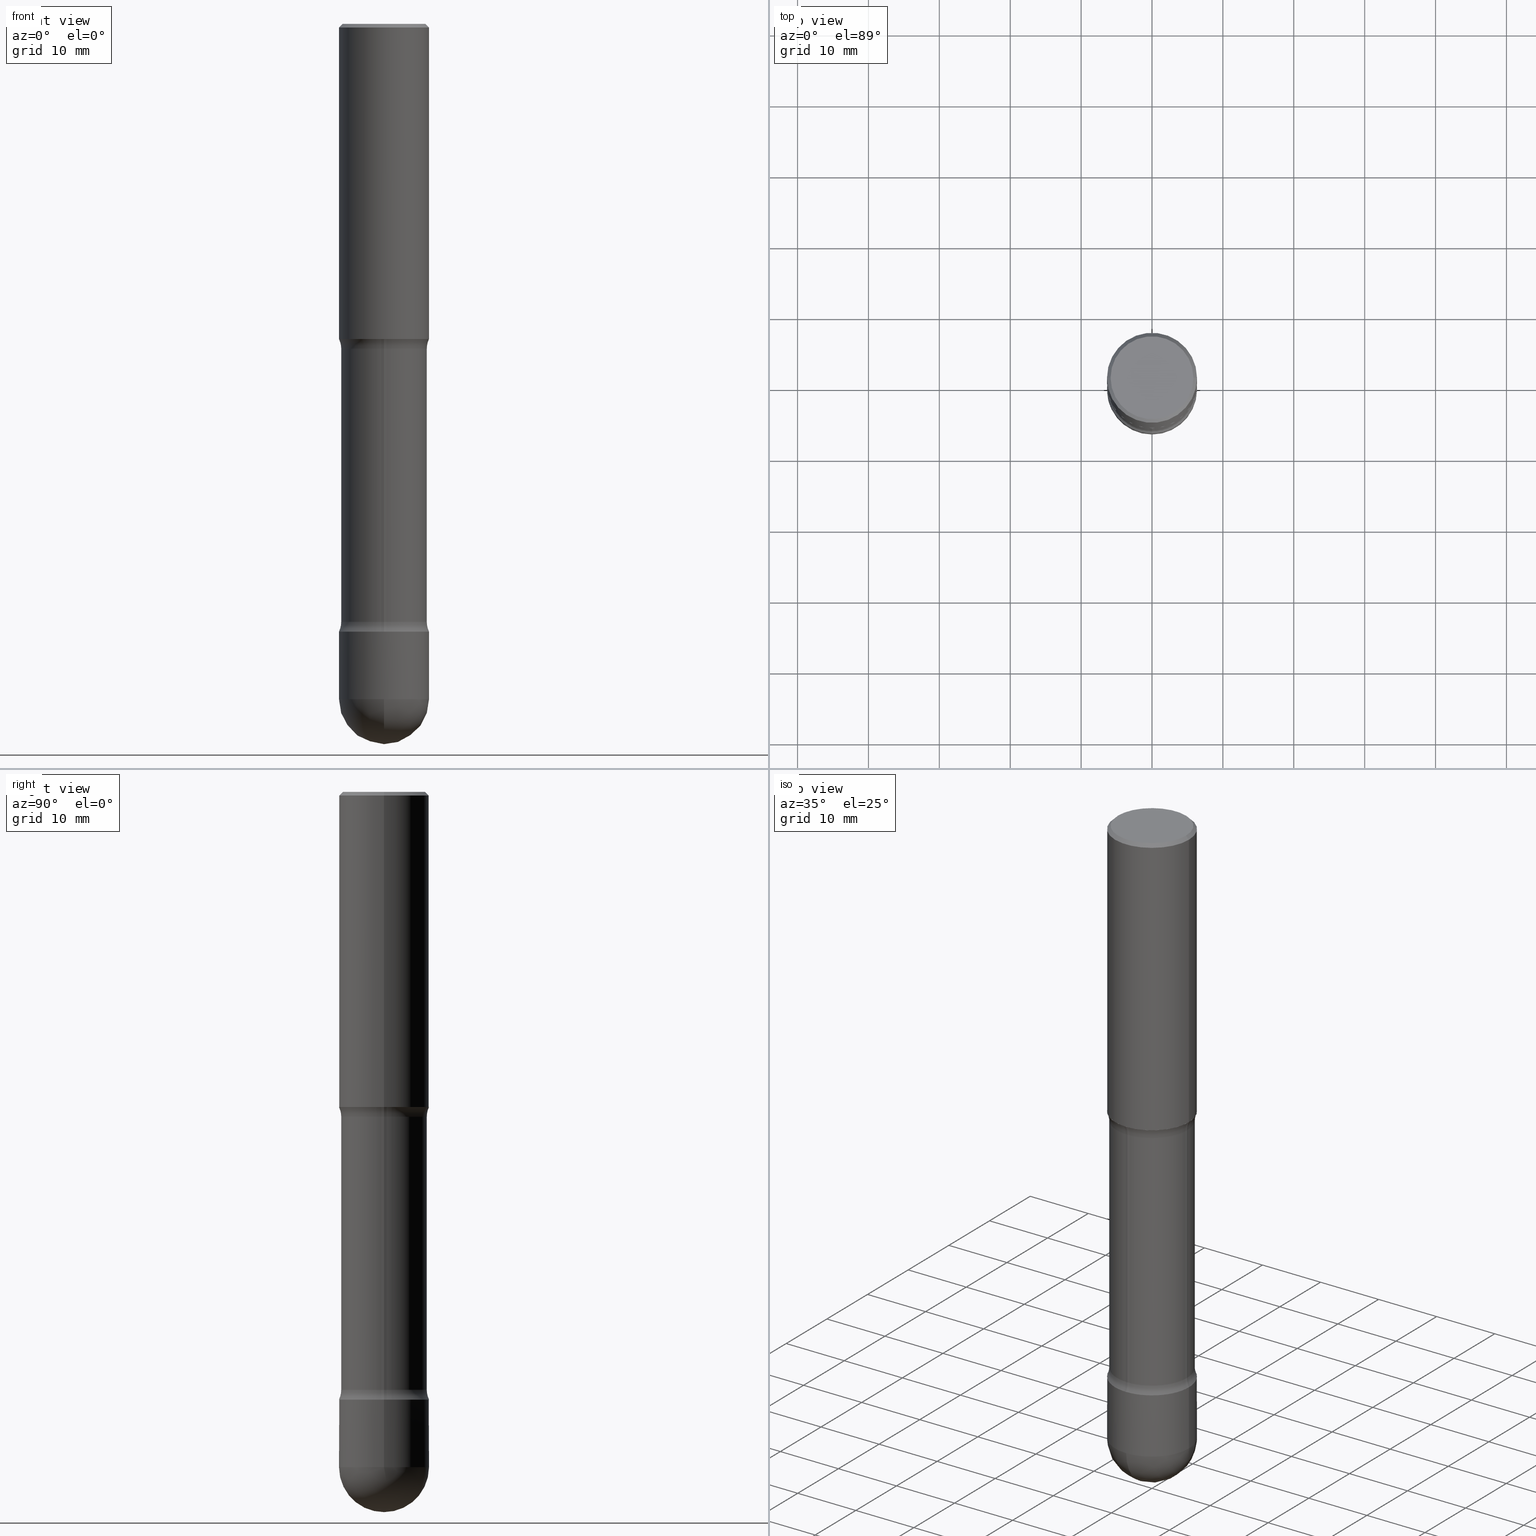
[diagram: canonical four-view strip — front | top / right | iso, engineering-drawing reading convention]
A machine part, canonical four-view strip (front | top / right | iso — engineering-drawing reading convention). The complete STEP part file that produces these views, byte-faithful:
ISO-10303-21;
HEADER;
FILE_DESCRIPTION (( 'STEP AP214' ),
    '1' );
FILE_NAME ('35010.STEP',
    '2022-11-30T20:51:58',
    ( '' ),
    ( '' ),
    'SwSTEP 2.0',
    'SolidWorks 2022',
    '' );
FILE_SCHEMA (( 'AUTOMOTIVE_DESIGN' ));
ENDSEC;

DATA;
#1 = ORIENTED_EDGE ( 'NONE', *, *, #7, .T. ) ;
#2 = DIRECTION ( 'NONE',  ( 1.000000000000000000, -6.982962677686265922E-15, 4.883557194083112901E-29 ) ) ;
#3 = VECTOR ( 'NONE', #408, 39.37007874015748143 ) ;
#4 = FILL_AREA_STYLE_COLOUR ( '', #750 ) ;
#5 = PRESENTATION_LAYER_ASSIGNMENT (  '', '', ( #367 ) ) ;
#6 = CARTESIAN_POINT ( 'NONE',  ( 1.776356839400337634E-15, 0.2499999999999863443, -3.750000000000000888 ) ) ;
#7 = EDGE_CURVE ( 'NONE', #607, #129, #505, .T. ) ;
#8 = AXIS2_PLACEMENT_3D ( 'NONE', #757, #491, #697 ) ;
#9 = DIRECTION ( 'NONE',  ( 1.848835711178280162E-29, -4.345893889139841245E-15, -1.000000000000000000 ) ) ;
#10 = CARTESIAN_POINT ( 'NONE',  ( 0.2500000000000000555, -7.855833012397072137E-15, -1.750000000000000000 ) ) ;
#11 = AXIS2_PLACEMENT_3D ( 'NONE', #770, #639, #562 ) ;
#12 = ORIENTED_EDGE ( 'NONE', *, *, #212, .F. ) ;
#13 = DIRECTION ( 'NONE',  ( 1.848835711178280162E-29, -4.345893889139841245E-15, -1.000000000000000000 ) ) ;
#14 = EDGE_LOOP ( 'NONE', ( #69, #371, #843, #444 ) ) ;
#15 = CARTESIAN_POINT ( 'NONE',  ( 9.408979540361261641E-29, -1.449993319930801510E-14, -4.000000000000000000 ) ) ;
#16 = STYLED_ITEM ( 'NONE', ( #762 ), #480 ) ;
#17 = DIRECTION ( 'NONE',  ( 1.000000000000000000, -6.982962677686267499E-15, 4.883557194083112901E-29 ) ) ;
#18 = PLANE ( 'NONE',  #139 ) ;
#19 = EDGE_LOOP ( 'NONE', ( #708, #134, #663, #402 ) ) ;
#20 = CARTESIAN_POINT ( 'NONE',  ( 0.2499999999999993061, -1.418414293905026949E-14, -3.749999999999999556 ) ) ;
#21 = EDGE_CURVE ( 'NONE', #454, #435, #279, .T. ) ;
#22 = DIRECTION ( 'NONE',  ( 1.000000000000000000, -6.982962677686265922E-15, 4.876176775795935793E-29 ) ) ;
#23 = EDGE_CURVE ( 'NONE', #646, #660, #469, .T. ) ;
#24 = CARTESIAN_POINT ( 'NONE',  ( -0.3624999999999998224, -3.724612604836086453E-15, -1.804486236794258680 ) ) ;
#25 = ADVANCED_FACE ( 'NONE', ( #78 ), #71, .T. ) ;
#26 = DIRECTION ( 'NONE',  ( 1.000000000000000000, -6.982962677686266711E-15, 4.883557194083112340E-29 ) ) ;
#27 = CLOSED_SHELL ( 'NONE', ( #706, #653, #794, #332, #473, #513, #819, #640 ) ) ;
#28 = CARTESIAN_POINT ( 'NONE',  ( -0.2499999999999996114, 1.675911042644701013E-15, -0.02000000000000005246 ) ) ;
#29 = SURFACE_STYLE_USAGE ( .BOTH. , #221 ) ;
#30 = FILL_AREA_STYLE ('',( #104 ) ) ;
#31 = SURFACE_STYLE_FILL_AREA ( #692 ) ;
#32 = PRESENTATION_LAYER_ASSIGNMENT (  '', '', ( #16 ) ) ;
#33 = CIRCLE ( 'NONE', #177, 0.2374999999999998501 ) ;
#34 = VECTOR ( 'NONE', #364, 39.37007874015748143 ) ;
#35 = UNCERTAINTY_MEASURE_WITH_UNIT (LENGTH_MEASURE( 1.000000000000000082E-05 ), #652, 'distance_accuracy_value', 'NONE');
#36 = SURFACE_SIDE_STYLE ('',( #631 ) ) ;
#37 = CARTESIAN_POINT ( 'NONE',  ( 1.606081415867838306E-15, 0.2299999999999995937, -7.966379391987714714E-16 ) ) ;
#38 =( LENGTH_UNIT ( ) NAMED_UNIT ( * ) SI_UNIT ( $, .METRE. ) );
#39 = EDGE_LOOP ( 'NONE', ( #853, #56, #732, #184, #785 ) ) ;
#40 =( NAMED_UNIT ( * ) SI_UNIT ( $, .STERADIAN. ) SOLID_ANGLE_UNIT ( ) );
#41 = EDGE_CURVE ( 'NONE', #507, #64, #33, .T. ) ;
#42 = AXIS2_PLACEMENT_3D ( 'NONE', #627, #702, #358 ) ;
#43 = CONICAL_SURFACE ( 'NONE', #643, 0.2499999999999996114, 0.7853981633974473908 ) ;
#44 = VERTEX_POINT ( 'NONE', #6 ) ;
#45 = TOROIDAL_SURFACE ( 'NONE', #523, 0.3625000000000001554, 0.1250000000000000278 ) ;
#46 = FACE_OUTER_BOUND ( 'NONE', #737, .T. ) ;
#47 = CIRCLE ( 'NONE', #73, 0.2374999999999998501 ) ;
#48 = CARTESIAN_POINT ( 'NONE',  ( -1.672246386956727041E-15, -0.2375000000000117295, -3.320513763205742208 ) ) ;
#49 = EDGE_LOOP ( 'NONE', ( #439, #1, #529, #593 ) ) ;
#50 = DIRECTION ( 'NONE',  ( 6.982962677686265922E-15, 1.000000000000000000, -4.345893889139841245E-15 ) ) ;
#51 = ORIENTED_EDGE ( 'NONE', *, *, #296, .T. ) ;
#52 = PRESENTATION_STYLE_ASSIGNMENT (( #787 ) ) ;
#53 = ORIENTED_EDGE ( 'NONE', *, *, #66, .T. ) ;
#54 = CIRCLE ( 'NONE', #312, 0.2500000000000000000 ) ;
#55 = FACE_OUTER_BOUND ( 'NONE', #636, .T. ) ;
#56 = ORIENTED_EDGE ( 'NONE', *, *, #527, .T. ) ;
#57 = SPHERICAL_SURFACE ( 'NONE', #397, 0.2500000000000002220 ) ;
#58 = EDGE_CURVE ( 'NONE', #256, #723, #517, .T. ) ;
#59 =( NAMED_UNIT ( * ) SI_UNIT ( $, .STERADIAN. ) SOLID_ANGLE_UNIT ( ) );
#60 = ORIENTED_EDGE ( 'NONE', *, *, #395, .F. ) ;
#61 = ORIENTED_EDGE ( 'NONE', *, *, #41, .T. ) ;
#62 = CIRCLE ( 'NONE', #167, 0.2299999999999995937 ) ;
#63 =( NAMED_UNIT ( * ) PLANE_ANGLE_UNIT ( ) SI_UNIT ( $, .RADIAN. ) );
#64 = VERTEX_POINT ( 'NONE', #288 ) ;
#65 = FILL_AREA_STYLE ('',( #4 ) ) ;
#66 = EDGE_CURVE ( 'NONE', #435, #454, #860, .T. ) ;
#67 = ORIENTED_EDGE ( 'NONE', *, *, #257, .F. ) ;
#68 = UNCERTAINTY_MEASURE_WITH_UNIT (LENGTH_MEASURE( 1.000000000000000082E-05 ), #657, 'distance_accuracy_value', 'NONE');
#69 = ORIENTED_EDGE ( 'NONE', *, *, #667, .F. ) ;
#70 = PRESENTATION_STYLE_ASSIGNMENT (( #372 ) ) ;
#71 = CONICAL_SURFACE ( 'NONE', #509, 0.2499999999999996114, 0.7853981633974473908 ) ;
#72 = PRESENTATION_STYLE_ASSIGNMENT (( #735 ) ) ;
#73 = AXIS2_PLACEMENT_3D ( 'NONE', #560, #163, #431 ) ;
#74 = EDGE_LOOP ( 'NONE', ( #476, #654, #793, #844 ) ) ;
#75 = TOROIDAL_SURFACE ( 'NONE', #558, 0.3624999999999998224, 0.1250000000000000000 ) ;
#76 =( CONVERSION_BASED_UNIT ( 'INCH', #209 ) LENGTH_UNIT ( ) NAMED_UNIT ( #429 ) );
#77 = DIRECTION ( 'NONE',  ( 1.000000000000000000, -6.982962677686266711E-15, 0.000000000000000000 ) ) ;
#78 = FACE_OUTER_BOUND ( 'NONE', #447, .T. ) ;
#79 = DIRECTION ( 'NONE',  ( -1.000000000000000000, 6.982962677686265922E-15, -4.883557194083112340E-29 ) ) ;
#80 = DIRECTION ( 'NONE',  ( -2.445468806185136597E-29, 3.491481338843145583E-15, 1.000000000000000000 ) ) ;
#81 = DIRECTION ( 'NONE',  ( -2.438088387897960049E-29, 3.491481338843145188E-15, 1.000000000000000000 ) ) ;
#82 = ADVANCED_FACE ( 'NONE', ( #479 ), #557, .F. ) ;
#83 = CIRCLE ( 'NONE', #229, 0.1250000000000000278 ) ;
#84 = EDGE_CURVE ( 'NONE', #464, #369, #563, .T. ) ;
#85 = DIRECTION ( 'NONE',  ( -2.445468806185136597E-29, 3.491481338843145583E-15, 1.000000000000000000 ) ) ;
#86 = CIRCLE ( 'NONE', #231, 0.2499999999999996114 ) ;
#87 = FACE_OUTER_BOUND ( 'NONE', #301, .T. ) ;
#88 = FACE_OUTER_BOUND ( 'NONE', #396, .T. ) ;
#89 = CARTESIAN_POINT ( 'NONE',  ( 0.2299999999999995937, -1.681434332853596250E-15, 1.280553747031272933E-17 ) ) ;
#90 = EDGE_LOOP ( 'NONE', ( #589, #857, #805, #61 ) ) ;
#91 = DIRECTION ( 'NONE',  ( -2.445468806185136597E-29, 3.491481338843145583E-15, 1.000000000000000000 ) ) ;
#92 = DIRECTION ( 'NONE',  ( -2.445468806185136597E-29, 3.491481338843145583E-15, 1.000000000000000000 ) ) ;
#93 = DIRECTION ( 'NONE',  ( -2.445468806185136597E-29, 3.491481338843145583E-15, 1.000000000000000000 ) ) ;
#94 = DIRECTION ( 'NONE',  ( 1.000000000000000000, -6.982962677686266711E-15, 4.876176775795935793E-29 ) ) ;
#95 = SURFACE_SIDE_STYLE ('',( #31 ) ) ;
#96 = AXIS2_PLACEMENT_3D ( 'NONE', #674, #13, #327 ) ;
#97 = STYLED_ITEM ( 'NONE', ( #581 ), #825 ) ;
#98 = DIMENSIONAL_EXPONENTS ( 1.000000000000000000, 0.000000000000000000, 0.000000000000000000, 0.000000000000000000, 0.000000000000000000, 0.000000000000000000, 0.000000000000000000 ) ;
#99 = CARTESIAN_POINT ( 'NONE',  ( 8.120212828428064270E-29, -1.159351183960467950E-14, -3.320513763205743096 ) ) ;
#100 =( NAMED_UNIT ( * ) PLANE_ANGLE_UNIT ( ) SI_UNIT ( $, .RADIAN. ) );
#101 = ORIENTED_EDGE ( 'NONE', *, *, #575, .F. ) ;
#102 = AXIS2_PLACEMENT_3D ( 'NONE', #277, #687, #549 ) ;
#103 = CARTESIAN_POINT ( 'NONE',  ( 9.408979540361261641E-29, -1.449993319930801510E-14, -4.000000000000000000 ) ) ;
#104 = FILL_AREA_STYLE_COLOUR ( '', #481 ) ;
#105 = DIMENSIONAL_EXPONENTS ( 1.000000000000000000, 0.000000000000000000, 0.000000000000000000, 0.000000000000000000, 0.000000000000000000, 0.000000000000000000, 0.000000000000000000 ) ;
#106 =( NAMED_UNIT ( * ) PLANE_ANGLE_UNIT ( ) SI_UNIT ( $, .RADIAN. ) );
#107 = ORIENTED_EDGE ( 'NONE', *, *, #795, .F. ) ;
#108 = ORIENTED_EDGE ( 'NONE', *, *, #527, .F. ) ;
#109 = SURFACE_STYLE_FILL_AREA ( #329 ) ;
#110 = ADVANCED_FACE ( 'NONE', ( #347 ), #75, .F. ) ;
#111 = AXIS2_PLACEMENT_3D ( 'NONE', #711, #829, #434 ) ;
#112 = ORIENTED_EDGE ( 'NONE', *, *, #245, .T. ) ;
#113 = CIRCLE ( 'NONE', #809, 0.1250000000000000278 ) ;
#114 = AXIS2_PLACEMENT_3D ( 'NONE', #317, #594, #251 ) ;
#115 = LINE ( 'NONE', #452, #261 ) ;
#116 = SURFACE_SIDE_STYLE ('',( #715 ) ) ;
#117 = COLOUR_RGB ( '',0.7921568627450980005, 0.8196078431372548767, 0.9333333333333333481 ) ;
#118 = VERTEX_POINT ( 'NONE', #89 ) ;
#119 = SURFACE_SIDE_STYLE ('',( #845 ) ) ;
#120 = FACE_OUTER_BOUND ( 'NONE', #516, .T. ) ;
#121 = AXIS2_PLACEMENT_3D ( 'NONE', #746, #475, #614 ) ;
#122 = ORIENTED_EDGE ( 'NONE', *, *, #613, .T. ) ;
#123 = APPLICATION_PROTOCOL_DEFINITION ( 'draft international standard', 'automotive_design', 1998, #238 ) ;
#124 = DIRECTION ( 'NONE',  ( -2.445468806185136597E-29, 3.491481338843145583E-15, 1.000000000000000000 ) ) ;
#125 = AXIS2_PLACEMENT_3D ( 'NONE', #821, #685, #605 ) ;
#126 = FILL_AREA_STYLE ('',( #719 ) ) ;
#127 = COLOUR_RGB ( '',0.7921568627450980005, 0.8196078431372548767, 0.9333333333333333481 ) ;
#128 = EDGE_LOOP ( 'NONE', ( #790, #248, #689, #314 ) ) ;
#129 = VERTEX_POINT ( 'NONE', #621 ) ;
#130 = ORIENTED_EDGE ( 'NONE', *, *, #23, .T. ) ;
#131 = DIRECTION ( 'NONE',  ( -2.445468806185136877E-29, 3.491481338843145188E-15, 1.000000000000000000 ) ) ;
#132 = ORIENTED_EDGE ( 'NONE', *, *, #575, .T. ) ;
#133 = DIRECTION ( 'NONE',  ( 1.848835711178280162E-29, -4.345893889139841245E-15, -1.000000000000000000 ) ) ;
#134 = ORIENTED_EDGE ( 'NONE', *, *, #599, .T. ) ;
#135 = AXIS2_PLACEMENT_3D ( 'NONE', #228, #707, #224 ) ;
#136 = FACE_OUTER_BOUND ( 'NONE', #74, .T. ) ;
#137 =( GEOMETRIC_REPRESENTATION_CONTEXT ( 3 ) GLOBAL_UNCERTAINTY_ASSIGNED_CONTEXT ( ( #348 ) ) GLOBAL_UNIT_ASSIGNED_CONTEXT ( ( #784, #592, #59 ) ) REPRESENTATION_CONTEXT ( 'NONE', 'WORKASPACE' ) );
#138 = DIRECTION ( 'NONE',  ( 6.982962677686265922E-15, 1.000000000000000000, -4.601007147224051243E-15 ) ) ;
#139 = AXIS2_PLACEMENT_3D ( 'NONE', #207, #681, #22 ) ;
#140 = DIRECTION ( 'NONE',  ( 1.000000000000000000, -6.982962677686266711E-15, 4.875813741439108182E-29 ) ) ;
#141 = ADVANCED_FACE ( 'NONE', ( #219 ), #18, .F. ) ;
#142 = PLANE ( 'NONE',  #730 ) ;
#143 = ADVANCED_FACE ( 'NONE', ( #543 ), #424, .T. ) ;
#144 = SURFACE_SIDE_STYLE ('',( #745 ) ) ;
#145 = DIRECTION ( 'NONE',  ( 1.000000000000000000, -6.982962677686267499E-15, 0.000000000000000000 ) ) ;
#146 = CIRCLE ( 'NONE', #722, 0.1250000000000000278 ) ;
#147 = DIRECTION ( 'NONE',  ( -6.982962677686265133E-15, -1.000000000000000000, 0.000000000000000000 ) ) ;
#148 = FACE_OUTER_BOUND ( 'NONE', #430, .T. ) ;
#149 = VECTOR ( 'NONE', #131, 39.37007874015748143 ) ;
#150 = DIRECTION ( 'NONE',  ( -1.000000000000000000, 6.982962677686265922E-15, -4.876176775795935793E-29 ) ) ;
#151 = AXIS2_PLACEMENT_3D ( 'NONE', #174, #526, #192 ) ;
#152 = DIRECTION ( 'NONE',  ( -2.445468806185136597E-29, 3.491481338843145583E-15, 1.000000000000000000 ) ) ;
#153 = DIRECTION ( 'NONE',  ( -2.445468806185136597E-29, 3.491481338843145583E-15, 1.000000000000000000 ) ) ;
#154 = EDGE_CURVE ( 'NONE', #44, #834, #433, .T. ) ;
#155 = DIRECTION ( 'NONE',  ( 1.848835711178280162E-29, -4.345893889139841245E-15, -1.000000000000000000 ) ) ;
#156 = CARTESIAN_POINT ( 'NONE',  ( -1.715124499442795327E-15, -0.2500000000000111022, -3.374999999999998668 ) ) ;
#157 = CARTESIAN_POINT ( 'NONE',  ( 5.349835290563072716E-29, -4.958463352269768875E-15, -1.804486236794258458 ) ) ;
#158 =( NAMED_UNIT ( * ) SI_UNIT ( $, .STERADIAN. ) SOLID_ANGLE_UNIT ( ) );
#159 = DIMENSIONAL_EXPONENTS ( 1.000000000000000000, 0.000000000000000000, 0.000000000000000000, 0.000000000000000000, 0.000000000000000000, 0.000000000000000000, 0.000000000000000000 ) ;
#160 =( LENGTH_UNIT ( ) NAMED_UNIT ( * ) SI_UNIT ( $, .METRE. ) );
#161 = TOROIDAL_SURFACE ( 'NONE', #381, 0.3624999999999985456, 0.1250000000000000000 ) ;
#162 = ORIENTED_EDGE ( 'NONE', *, *, #705, .T. ) ;
#163 = DIRECTION ( 'NONE',  ( -2.445468806185136597E-29, 3.491481338843145583E-15, 1.000000000000000000 ) ) ;
#164 = DIRECTION ( 'NONE',  ( 1.000000000000000000, -6.982962677686265133E-15, 0.000000000000000000 ) ) ;
#165 = DIMENSIONAL_EXPONENTS ( 1.000000000000000000, 0.000000000000000000, 0.000000000000000000, 0.000000000000000000, 0.000000000000000000, 0.000000000000000000, 0.000000000000000000 ) ;
#166 = ORIENTED_EDGE ( 'NONE', *, *, #340, .T. ) ;
#167 = AXIS2_PLACEMENT_3D ( 'NONE', #344, #80, #140 ) ;
#168 = PRODUCT_RELATED_PRODUCT_CATEGORY ( 'part', '', ( #442 ) ) ;
#169 = EDGE_CURVE ( 'NONE', #546, #118, #62, .T. ) ;
#170 = PLANE ( 'NONE',  #271 ) ;
#171 = PRESENTATION_LAYER_ASSIGNMENT (  '', '', ( #620 ) ) ;
#172 = AXIS2_PLACEMENT_3D ( 'NONE', #320, #524, #197 ) ;
#173 = VERTEX_POINT ( 'NONE', #624 ) ;
#174 = CARTESIAN_POINT ( 'NONE',  ( 8.253457220874836014E-29, -1.178374951859561452E-14, -3.375000000000000000 ) ) ;
#175 = DIRECTION ( 'NONE',  ( -2.445468806185136597E-29, 3.491481338843145583E-15, 1.000000000000000000 ) ) ;
#176 = VECTOR ( 'NONE', #478, 39.37007874015748143 ) ;
#177 = AXIS2_PLACEMENT_3D ( 'NONE', #668, #124, #602 ) ;
#178 = EDGE_LOOP ( 'NONE', ( #266, #323, #181, #67 ) ) ;
#179 =( NAMED_UNIT ( * ) SI_UNIT ( $, .STERADIAN. ) SOLID_ANGLE_UNIT ( ) );
#180 = PRODUCT_DEFINITION_FORMATION_WITH_SPECIFIED_SOURCE ( 'ANY', '', #442, .NOT_KNOWN. ) ;
#181 = ORIENTED_EDGE ( 'NONE', *, *, #767, .T. ) ;
#182 = SURFACE_STYLE_FILL_AREA ( #65 ) ;
#183 = DIRECTION ( 'NONE',  ( 0.000000000000000000, 0.000000000000000000, 1.000000000000000000 ) ) ;
#184 = ORIENTED_EDGE ( 'NONE', *, *, #515, .F. ) ;
#185 =( CONVERSION_BASED_UNIT ( 'INCH', #521 ) LENGTH_UNIT ( ) NAMED_UNIT ( #98 ) );
#186 = VERTEX_POINT ( 'NONE', #156 ) ;
#187 = CIRCLE ( 'NONE', #682, 0.2499999999999993894 ) ;
#188 = EDGE_CURVE ( 'NONE', #325, #208, #704, .T. ) ;
#189 = AXIS2_PLACEMENT_3D ( 'NONE', #24, #267, #684 ) ;
#190 = ORIENTED_EDGE ( 'NONE', *, *, #169, .F. ) ;
#191 = DIRECTION ( 'NONE',  ( 6.982962677686265922E-15, 1.000000000000000000, -4.601007147224018900E-15 ) ) ;
#192 = DIRECTION ( 'NONE',  ( 6.982962677686265922E-15, 1.000000000000000000, -4.370956789862832194E-15 ) ) ;
#193 = EDGE_CURVE ( 'NONE', #546, #464, #553, .T. ) ;
#194 = ORIENTED_EDGE ( 'NONE', *, *, #193, .T. ) ;
#195 = FILL_AREA_STYLE_COLOUR ( '', #337 ) ;
#196 = CARTESIAN_POINT ( 'NONE',  ( 0.2499999999999996114, -1.784954126219743428E-15, -0.02000000000000005246 ) ) ;
#197 = DIRECTION ( 'NONE',  ( 1.000000000000000000, -6.982962677686262766E-15, 0.000000000000000000 ) ) ;
#198 = STYLED_ITEM ( 'NONE', ( #701 ), #493 ) ;
#199 = MECHANICAL_DESIGN_GEOMETRIC_PRESENTATION_REPRESENTATION (  '', ( #615 ), #468 ) ;
#200 = DIRECTION ( 'NONE',  ( 1.000000000000000000, -6.982962677686265133E-15, 0.000000000000000000 ) ) ;
#201 = FACE_OUTER_BOUND ( 'NONE', #14, .T. ) ;
#202 = CIRCLE ( 'NONE', #114, 0.2500000000000000000 ) ;
#203 = CARTESIAN_POINT ( 'NONE',  ( 8.668097828301368932E-29, -1.381253501516086483E-14, -3.749999999999999556 ) ) ;
#204 = EDGE_CURVE ( 'NONE', #675, #44, #387, .T. ) ;
#205 = DIRECTION ( 'NONE',  ( -6.982962677686266711E-15, -1.000000000000000000, 3.491481338843145583E-15 ) ) ;
#206 = DIRECTION ( 'NONE',  ( -2.445468806185136597E-29, 3.491481338843145583E-15, 1.000000000000000000 ) ) ;
#207 = CARTESIAN_POINT ( 'NONE',  ( 4.279570410823988484E-29, -6.110092342975504671E-15, -1.750000000000000000 ) ) ;
#208 = VERTEX_POINT ( 'NONE', #487 ) ;
#209 = LENGTH_MEASURE_WITH_UNIT ( LENGTH_MEASURE( 0.02539999999999999897 ), #547 );
#210 = CARTESIAN_POINT ( 'NONE',  ( 0.2375000000000000167, -7.768545978925992226E-15, -1.750000000000000000 ) ) ;
#211 = DIRECTION ( 'NONE',  ( 1.000000000000000000, -6.982962677686267499E-15, 0.000000000000000000 ) ) ;
#212 = EDGE_CURVE ( 'NONE', #841, #186, #756, .T. ) ;
#213 = CARTESIAN_POINT ( 'NONE',  ( 8.253457220874836014E-29, -1.178374951859561452E-14, -3.375000000000000000 ) ) ;
#214 = CIRCLE ( 'NONE', #587, 0.2500000000000000000 ) ;
#215 = AXIS2_PLACEMENT_3D ( 'NONE', #740, #392, #138 ) ;
#216 = CARTESIAN_POINT ( 'NONE',  ( 4.279570410823988484E-29, -6.110092342975504671E-15, -1.750000000000000000 ) ) ;
#217 = MECHANICAL_DESIGN_GEOMETRIC_PRESENTATION_REPRESENTATION (  '', ( #97 ), #683 ) ;
#218 = DIRECTION ( 'NONE',  ( 1.000000000000000000, -6.982962677686267499E-15, 0.000000000000000000 ) ) ;
#219 = FACE_OUTER_BOUND ( 'NONE', #500, .T. ) ;
#220 = UNCERTAINTY_MEASURE_WITH_UNIT (LENGTH_MEASURE( 1.000000000000000082E-05 ), #244, 'distance_accuracy_value', 'NONE');
#221 = SURFACE_SIDE_STYLE ('',( #109 ) ) ;
#222 = CLOSED_SHELL ( 'NONE', ( #143, #400, #25, #82, #141, #386 ) ) ;
#223 = CARTESIAN_POINT ( 'NONE',  ( 4.279570410823988484E-29, -6.110092342975504671E-15, -1.750000000000000000 ) ) ;
#224 = DIRECTION ( 'NONE',  ( 6.982962677686265922E-15, 1.000000000000000000, -4.370956789862844815E-15 ) ) ;
#225 = ORIENTED_EDGE ( 'NONE', *, *, #268, .T. ) ;
#226 = CARTESIAN_POINT ( 'NONE',  ( 8.668097828301368932E-29, -1.381253501516086483E-14, -3.749999999999999556 ) ) ;
#227 = CIRCLE ( 'NONE', #585, 0.2499999999999986400 ) ;
#228 = CARTESIAN_POINT ( 'NONE',  ( 5.249099190210130506E-29, -4.721671948743372690E-15, -1.749999999999999556 ) ) ;
#229 = AXIS2_PLACEMENT_3D ( 'NONE', #812, #79, #147 ) ;
#230 = ORIENTED_EDGE ( 'NONE', *, *, #501, .F. ) ;
#231 = AXIS2_PLACEMENT_3D ( 'NONE', #298, #492, #570 ) ;
#232 = EDGE_CURVE ( 'NONE', #646, #454, #679, .T. ) ;
#233 = DIMENSIONAL_EXPONENTS ( 1.000000000000000000, 0.000000000000000000, 0.000000000000000000, 0.000000000000000000, 0.000000000000000000, 0.000000000000000000, 0.000000000000000000 ) ;
#234 = DIRECTION ( 'NONE',  ( 6.982962677686265922E-15, 1.000000000000000000, -4.601007147224051243E-15 ) ) ;
#235 = VECTOR ( 'NONE', #155, 39.37007874015748143 ) ;
#236 = DIMENSIONAL_EXPONENTS ( 1.000000000000000000, 0.000000000000000000, 0.000000000000000000, 0.000000000000000000, 0.000000000000000000, 0.000000000000000000, 0.000000000000000000 ) ;
#237 = CARTESIAN_POINT ( 'NONE',  ( 0.2499999999999993894, -1.352949018801717646E-14, -3.375000000000000000 ) ) ;
#238 = APPLICATION_CONTEXT ( 'automotive_design' ) ;
#239 = ORIENTED_EDGE ( 'NONE', *, *, #188, .T. ) ;
#240 = CARTESIAN_POINT ( 'NONE',  ( 5.318943450862072870E-29, -5.002702224975921808E-15, -1.804486236794258458 ) ) ;
#241 = DIRECTION ( 'NONE',  ( 1.848835711178280162E-29, -4.345893889139841245E-15, -1.000000000000000000 ) ) ;
#242 = EDGE_LOOP ( 'NONE', ( #331, #166, #664, #815 ) ) ;
#243 = MANIFOLD_SOLID_BREP ( 'Body-Move/Copy2[4]', #27 ) ;
#244 =( CONVERSION_BASED_UNIT ( 'INCH', #590 ) LENGTH_UNIT ( ) NAMED_UNIT ( #362 ) );
#245 = EDGE_CURVE ( 'NONE', #660, #173, #410, .T. ) ;
#246 = CARTESIAN_POINT ( 'NONE',  ( 0.2499999999999993616, -1.745740669421562142E-15, 1.219044193948980865E-29 ) ) ;
#247 = CIRCLE ( 'NONE', #601, 0.2499999999999993061 ) ;
#248 = ORIENTED_EDGE ( 'NONE', *, *, #686, .T. ) ;
#249 = TOROIDAL_SURFACE ( 'NONE', #617, 0.3625000000000001554, 0.1250000000000000278 ) ;
#250 = ORIENTED_EDGE ( 'NONE', *, *, #84, .T. ) ;
#251 = DIRECTION ( 'NONE',  ( 1.000000000000000000, -6.982962677686266711E-15, 0.000000000000000000 ) ) ;
#252 =( LENGTH_UNIT ( ) NAMED_UNIT ( * ) SI_UNIT ( $, .METRE. ) );
#253 = VERTEX_POINT ( 'NONE', #237 ) ;
#254 =( CONVERSION_BASED_UNIT ( 'INCH', #713 ) LENGTH_UNIT ( ) NAMED_UNIT ( #566 ) );
#255 = PLANE ( 'NONE',  #796 ) ;
#256 = VERTEX_POINT ( 'NONE', #300 ) ;
#257 = EDGE_CURVE ( 'NONE', #129, #253, #146, .T. ) ;
#258 = CIRCLE ( 'NONE', #125, 0.2500000000000000000 ) ;
#259 = CARTESIAN_POINT ( 'NONE',  ( 8.668097828301368932E-29, -1.381253501516086483E-14, -3.749999999999999556 ) ) ;
#260 =( LENGTH_UNIT ( ) NAMED_UNIT ( * ) SI_UNIT ( $, .METRE. ) );
#261 = VECTOR ( 'NONE', #655, 39.37007874015748143 ) ;
#262 = CARTESIAN_POINT ( 'NONE',  ( 8.253457220874836014E-29, -1.178374951859561452E-14, -3.375000000000000000 ) ) ;
#263 = UNCERTAINTY_MEASURE_WITH_UNIT (LENGTH_MEASURE( 1.000000000000000082E-05 ), #185, 'distance_accuracy_value', 'NONE');
#264 = CYLINDRICAL_SURFACE ( 'NONE', #398, 0.2499999999999993616 ) ;
#265 = CARTESIAN_POINT ( 'NONE',  ( 4.279570410823988484E-29, -6.110092342975504671E-15, -1.750000000000000000 ) ) ;
#266 = ORIENTED_EDGE ( 'NONE', *, *, #7, .F. ) ;
#267 = DIRECTION ( 'NONE',  ( 7.105427357601001859E-15, 1.000000000000000000, -3.491481338843145583E-15 ) ) ;
#268 = EDGE_CURVE ( 'NONE', #129, #607, #789, .T. ) ;
#269 = DIRECTION ( 'NONE',  ( 1.000000000000000000, -6.982962677686266711E-15, 4.875813741439108182E-29 ) ) ;
#270 = ORIENTED_EDGE ( 'NONE', *, *, #193, .F. ) ;
#271 = AXIS2_PLACEMENT_3D ( 'NONE', #223, #579, #759 ) ;
#272 = CIRCLE ( 'NONE', #379, 0.1250000000000000278 ) ;
#273 = CARTESIAN_POINT ( 'NONE',  ( 1.658453635950531139E-15, 0.2374999999999935774, -1.804486236794259568 ) ) ;
#274 = AXIS2_PLACEMENT_3D ( 'NONE', #360, #152, #637 ) ;
#275 = CARTESIAN_POINT ( 'NONE',  ( 4.412814803270765833E-29, -6.300330021966448365E-15, -1.804486236794258680 ) ) ;
#276 = DIRECTION ( 'NONE',  ( 1.848835711178280162E-29, -4.345893889139841245E-15, -1.000000000000000000 ) ) ;
#277 = CARTESIAN_POINT ( 'NONE',  ( 0.000000000000000000, 0.000000000000000000, 0.000000000000000000 ) ) ;
#278 = EDGE_CURVE ( 'NONE', #723, #256, #490, .T. ) ;
#279 = CIRCLE ( 'NONE', #849, 0.2375000000000001554 ) ;
#280 = FACE_OUTER_BOUND ( 'NONE', #800, .T. ) ;
#281 = CARTESIAN_POINT ( 'NONE',  ( 0.000000000000000000, 0.000000000000000000, 0.000000000000000000 ) ) ;
#282 = DIRECTION ( 'NONE',  ( -1.000000000000000000, 6.982962677686265922E-15, -4.883557194083112340E-29 ) ) ;
#283 = PRODUCT_DEFINITION_CONTEXT ( 'detailed design', #839, 'design' ) ;
#284 = CARTESIAN_POINT ( 'NONE',  ( 4.279570410823988484E-29, -6.110092342975504671E-15, -1.750000000000000000 ) ) ;
#285 = AXIS2_PLACEMENT_3D ( 'NONE', #365, #175, #94 ) ;
#286 =( CONVERSION_BASED_UNIT ( 'INCH', #768 ) LENGTH_UNIT ( ) NAMED_UNIT ( #105 ) );
#287 = MECHANICAL_DESIGN_GEOMETRIC_PRESENTATION_REPRESENTATION (  '', ( #368 ), #486 ) ;
#288 = CARTESIAN_POINT ( 'NONE',  ( -0.2374999999999998501, -4.473263264055732552E-15, -1.804486236794258680 ) ) ;
#289 = AXIS2_PLACEMENT_3D ( 'NONE', #774, #438, #164 ) ;
#290 = FACE_OUTER_BOUND ( 'NONE', #49, .T. ) ;
#291 = DIRECTION ( 'NONE',  ( -1.000000000000000000, 6.982962677686265922E-15, -4.876176775795935793E-29 ) ) ;
#292 = ORIENTED_EDGE ( 'NONE', *, *, #578, .F. ) ;
#293 = SURFACE_STYLE_FILL_AREA ( #489 ) ;
#294 = EDGE_CURVE ( 'NONE', #834, #208, #775, .T. ) ;
#295 = CARTESIAN_POINT ( 'NONE',  ( 0.3625000000000002109, -1.412483581026595276E-14, -3.320513763205743096 ) ) ;
#296 = EDGE_CURVE ( 'NONE', #173, #389, #628, .T. ) ;
#297 = EDGE_LOOP ( 'NONE', ( #519, #591 ) ) ;
#298 = CARTESIAN_POINT ( 'NONE',  ( 4.890937612370285420E-31, -6.982962677686308865E-17, -0.02000000000000005246 ) ) ;
#299 = DIRECTION ( 'NONE',  ( 6.982962677686265922E-15, 1.000000000000000000, -4.370956789862844815E-15 ) ) ;
#300 = CARTESIAN_POINT ( 'NONE',  ( 0.2499999999999993894, -1.352949018801717646E-14, -3.375000000000000000 ) ) ;
#301 = EDGE_LOOP ( 'NONE', ( #847, #580 ) ) ;
#302 = CARTESIAN_POINT ( 'NONE',  ( -0.2499999999999994171, -1.066204543022846181E-14, -3.375000000000000000 ) ) ;
#303 = CARTESIAN_POINT ( 'NONE',  ( -0.2499999999999996114, 1.675911042644701013E-15, -0.02000000000000005246 ) ) ;
#304 = ORIENTED_EDGE ( 'NONE', *, *, #21, .F. ) ;
#305 = EDGE_CURVE ( 'NONE', #660, #435, #495, .T. ) ;
#306 = PRODUCT_DEFINITION_SHAPE ( 'NONE', 'NONE',  #436 ) ;
#307 = DIRECTION ( 'NONE',  ( -1.848835711178279881E-29, 4.345893889139841245E-15, 1.000000000000000000 ) ) ;
#308 = ORIENTED_EDGE ( 'NONE', *, *, #305, .T. ) ;
#309 = CARTESIAN_POINT ( 'NONE',  ( 1.745740669421644380E-15, 0.2499999999999875655, -3.375000000000000888 ) ) ;
#310 = LENGTH_MEASURE_WITH_UNIT ( LENGTH_MEASURE( 0.02539999999999999897 ), #260 );
#311 =( LENGTH_UNIT ( ) NAMED_UNIT ( * ) SI_UNIT ( $, .METRE. ) );
#312 = AXIS2_PLACEMENT_3D ( 'NONE', #216, #474, #485 ) ;
#313 = PRESENTATION_LAYER_ASSIGNMENT (  '', '', ( #571 ) ) ;
#314 = ORIENTED_EDGE ( 'NONE', *, *, #355, .F. ) ;
#315 = AXIS2_PLACEMENT_3D ( 'NONE', #103, #422, #629 ) ;
#316 = EDGE_LOOP ( 'NONE', ( #771, #718, #496, #736 ) ) ;
#317 = CARTESIAN_POINT ( 'NONE',  ( 4.279570410823988484E-29, -6.110092342975504671E-15, -1.750000000000000000 ) ) ;
#318 = CARTESIAN_POINT ( 'NONE',  ( -0.2499999999999993616, 1.776356839400245929E-15, -1.229733772563723222E-29 ) ) ;
#319 = ADVANCED_FACE ( 'NONE', ( #201 ), #366, .F. ) ;
#320 = CARTESIAN_POINT ( 'NONE',  ( 8.120212828428064270E-29, -1.159351183960467950E-14, -3.320513763205743096 ) ) ;
#321 = EDGE_CURVE ( 'NONE', #374, #649, #258, .T. ) ;
#322 = DIRECTION ( 'NONE',  ( 1.000000000000000000, -6.982962677686265922E-15, 4.883557194083112901E-29 ) ) ;
#323 = ORIENTED_EDGE ( 'NONE', *, *, #667, .T. ) ;
#324 = COLOUR_RGB ( '',1.000000000000000000, 1.000000000000000000, 0.000000000000000000 ) ;
#325 = VERTEX_POINT ( 'NONE', #415 ) ;
#326 = CARTESIAN_POINT ( 'NONE',  ( -2.486930524192099412E-15, -0.3625000000000117018, -3.320513763205741764 ) ) ;
#327 = DIRECTION ( 'NONE',  ( 6.982962677686265922E-15, 1.000000000000000000, -4.345893889139841245E-15 ) ) ;
#328 = ORIENTED_EDGE ( 'NONE', *, *, #66, .F. ) ;
#329 = FILL_AREA_STYLE ('',( #195 ) ) ;
#330 = DIRECTION ( 'NONE',  ( 2.445468806185136597E-29, -3.491481338843145583E-15, -1.000000000000000000 ) ) ;
#331 = ORIENTED_EDGE ( 'NONE', *, *, #395, .T. ) ;
#332 = ADVANCED_FACE ( 'NONE', ( #88 ), #441, .F. ) ;
#333 = LINE ( 'NONE', #472, #539 ) ;
#334 = CARTESIAN_POINT ( 'NONE',  ( 1.658453635950577879E-15, 0.2374999999999848344, -4.000000000000000888 ) ) ;
#335 =( GEOMETRIC_REPRESENTATION_CONTEXT ( 3 ) GLOBAL_UNCERTAINTY_ASSIGNED_CONTEXT ( ( #801 ) ) GLOBAL_UNIT_ASSIGNED_CONTEXT ( ( #286, #100, #158 ) ) REPRESENTATION_CONTEXT ( 'NONE', 'WORKASPACE' ) );
#336 = EDGE_LOOP ( 'NONE', ( #457, #239, #388, #418 ) ) ;
#337 = COLOUR_RGB ( '',1.000000000000000000, 1.000000000000000000, 0.000000000000000000 ) ;
#338 = DIRECTION ( 'NONE',  ( 6.982962677686265922E-15, 1.000000000000000000, -4.345893889139841245E-15 ) ) ;
#339 =( LENGTH_UNIT ( ) NAMED_UNIT ( * ) SI_UNIT ( $, .METRE. ) );
#340 = EDGE_CURVE ( 'NONE', #511, #464, #343, .T. ) ;
#341 = CARTESIAN_POINT ( 'NONE',  ( 4.890937612370285420E-31, -6.982962677686308865E-17, -0.02000000000000005246 ) ) ;
#342 = DIRECTION ( 'NONE',  ( 7.105427357601001859E-15, 1.000000000000000000, -3.491481338843145583E-15 ) ) ;
#343 = LINE ( 'NONE', #542, #176 ) ;
#344 = CARTESIAN_POINT ( 'NONE',  ( -3.131554243005659264E-46, 4.471029511141341874E-32, 1.280553747030123384E-17 ) ) ;
#345 = FACE_OUTER_BOUND ( 'NONE', #178, .T. ) ;
#346 = CARTESIAN_POINT ( 'NONE',  ( 8.253457220874836014E-29, -1.178374951859561452E-14, -3.375000000000000000 ) ) ;
#347 = FACE_OUTER_BOUND ( 'NONE', #90, .T. ) ;
#348 = UNCERTAINTY_MEASURE_WITH_UNIT (LENGTH_MEASURE( 1.000000000000000082E-05 ), #784, 'distance_accuracy_value', 'NONE');
#349 = FACE_OUTER_BOUND ( 'NONE', #606, .T. ) ;
#350 = AXIS2_PLACEMENT_3D ( 'NONE', #755, #804, #269 ) ;
#351 = DIRECTION ( 'NONE',  ( 6.860497997771529985E-15, 1.000000000000000000, 0.000000000000000000 ) ) ;
#352 = CIRCLE ( 'NONE', #458, 0.2500000000000002220 ) ;
#353 = SURFACE_STYLE_USAGE ( .BOTH. , #95 ) ;
#354 = DIRECTION ( 'NONE',  ( -2.445468806185136597E-29, 3.491481338843145583E-15, 1.000000000000000000 ) ) ;
#355 = EDGE_CURVE ( 'NONE', #208, #675, #247, .T. ) ;
#356 =( CONVERSION_BASED_UNIT ( 'INCH', #645 ) LENGTH_UNIT ( ) NAMED_UNIT ( #357 ) );
#357 = DIMENSIONAL_EXPONENTS ( 1.000000000000000000, 0.000000000000000000, 0.000000000000000000, 0.000000000000000000, 0.000000000000000000, 0.000000000000000000, 0.000000000000000000 ) ;
#358 = DIRECTION ( 'NONE',  ( -6.982962677686266711E-15, -1.000000000000000000, 0.000000000000000000 ) ) ;
#359 = ORIENTED_EDGE ( 'NONE', *, *, #463, .F. ) ;
#360 = CARTESIAN_POINT ( 'NONE',  ( 4.279570410823988484E-29, -6.110092342975504671E-15, -1.750000000000000000 ) ) ;
#361 = CARTESIAN_POINT ( 'NONE',  ( 5.249099190210130506E-29, -4.721671948743372690E-15, -1.749999999999999556 ) ) ;
#362 = DIMENSIONAL_EXPONENTS ( 1.000000000000000000, 0.000000000000000000, 0.000000000000000000, 0.000000000000000000, 0.000000000000000000, 0.000000000000000000, 0.000000000000000000 ) ;
#363 = ORIENTED_EDGE ( 'NONE', *, *, #477, .F. ) ;
#364 = DIRECTION ( 'NONE',  ( 0.7071067811865469066, -7.319954787623254468E-15, -0.7071067811865482389 ) ) ;
#365 = CARTESIAN_POINT ( 'NONE',  ( 0.000000000000000000, 0.000000000000000000, 0.000000000000000000 ) ) ;
#366 = TOROIDAL_SURFACE ( 'NONE', #426, 0.3625000000000002109, 0.1250000000000000278 ) ;
#367 = STYLED_ITEM ( 'NONE', ( #70 ), #534 ) ;
#368 = STYLED_ITEM ( 'NONE', ( #72 ), #695 ) ;
#369 = VERTEX_POINT ( 'NONE', #196 ) ;
#370 =( NAMED_UNIT ( * ) SI_UNIT ( $, .STERADIAN. ) SOLID_ANGLE_UNIT ( ) );
#371 = ORIENTED_EDGE ( 'NONE', *, *, #268, .F. ) ;
#372 = SURFACE_STYLE_USAGE ( .BOTH. , #116 ) ;
#373 = ORIENTED_EDGE ( 'NONE', *, *, #515, .T. ) ;
#374 = VERTEX_POINT ( 'NONE', #10 ) ;
#375 = SURFACE_SIDE_STYLE ('',( #647 ) ) ;
#376 = SURFACE_SIDE_STYLE ('',( #182 ) ) ;
#377 = CARTESIAN_POINT ( 'NONE',  ( 0.000000000000000000, 0.000000000000000000, 0.000000000000000000 ) ) ;
#378 = AXIS2_PLACEMENT_3D ( 'NONE', #437, #828, #351 ) ;
#379 = AXIS2_PLACEMENT_3D ( 'NONE', #618, #342, #541 ) ;
#380 = EDGE_LOOP ( 'NONE', ( #533, #130, #308, #304 ) ) ;
#381 = AXIS2_PLACEMENT_3D ( 'NONE', #240, #852, #520 ) ;
#382 = FILL_AREA_STYLE_COLOUR ( '', #700 ) ;
#383 = ORIENTED_EDGE ( 'NONE', *, *, #717, .T. ) ;
#384 = EDGE_CURVE ( 'NONE', #129, #507, #817, .T. ) ;
#385 = FILL_AREA_STYLE_COLOUR ( '', #127 ) ;
#386 = ADVANCED_FACE ( 'NONE', ( #136 ), #748, .T. ) ;
#387 = CIRCLE ( 'NONE', #512, 0.2499999999999993061 ) ;
#388 = ORIENTED_EDGE ( 'NONE', *, *, #294, .F. ) ;
#389 = VERTEX_POINT ( 'NONE', #466 ) ;
#390 = PRESENTATION_STYLE_ASSIGNMENT (( #449 ) ) ;
#391 = FILL_AREA_STYLE_COLOUR ( '', #783 ) ;
#392 = DIRECTION ( 'NONE',  ( 1.848835711178280162E-29, -4.345893889139841245E-15, -1.000000000000000000 ) ) ;
#393 = UNCERTAINTY_MEASURE_WITH_UNIT (LENGTH_MEASURE( 1.000000000000000082E-05 ), #573, 'distance_accuracy_value', 'NONE');
#394 = CARTESIAN_POINT ( 'NONE',  ( 8.167903809880239062E-29, -1.152521563976307267E-14, -3.320513763205743096 ) ) ;
#395 = EDGE_CURVE ( 'NONE', #569, #511, #214, .T. ) ;
#396 = EDGE_LOOP ( 'NONE', ( #363, #641, #112, #51 ) ) ;
#397 = AXIS2_PLACEMENT_3D ( 'NONE', #582, #322, #846 ) ;
#398 = AXIS2_PLACEMENT_3D ( 'NONE', #642, #93, #488 ) ;
#399 = AXIS2_PLACEMENT_3D ( 'NONE', #377, #183, #450 ) ;
#400 = ADVANCED_FACE ( 'NONE', ( #148 ), #43, .T. ) ;
#401 = FACE_OUTER_BOUND ( 'NONE', #39, .T. ) ;
#402 = ORIENTED_EDGE ( 'NONE', *, *, #555, .F. ) ;
#403 = DIRECTION ( 'NONE',  ( 2.438088387897960049E-29, -3.491481338843145188E-15, -1.000000000000000000 ) ) ;
#404 = FILL_AREA_STYLE ('',( #619 ) ) ;
#405 = CARTESIAN_POINT ( 'NONE',  ( -1.629368274470639823E-15, -0.2375000000000138667, -3.999999999999998668 ) ) ;
#406 = CLOSED_SHELL ( 'NONE', ( #453, #856, #493, #676, #480 ) ) ;
#407 = DIRECTION ( 'NONE',  ( 6.982962677686265922E-15, 1.000000000000000000, -4.601007147224034677E-15 ) ) ;
#408 = DIRECTION ( 'NONE',  ( -2.445468806185136877E-29, 3.491481338843145188E-15, 1.000000000000000000 ) ) ;
#409 = DIRECTION ( 'NONE',  ( -2.445468806185136597E-29, 3.491481338843145583E-15, 1.000000000000000000 ) ) ;
#410 = CIRCLE ( 'NONE', #42, 0.1250000000000000000 ) ;
#411 = VECTOR ( 'NONE', #861, 39.37007874015748143 ) ;
#412 =( GEOMETRIC_REPRESENTATION_CONTEXT ( 3 ) GLOBAL_UNCERTAINTY_ASSIGNED_CONTEXT ( ( #68 ) ) GLOBAL_UNIT_ASSIGNED_CONTEXT ( ( #657, #648, #528 ) ) REPRESENTATION_CONTEXT ( 'NONE', 'WORKASPACE' ) );
#413 = DIRECTION ( 'NONE',  ( 1.000000000000000000, -6.982962677686265922E-15, 4.876176775795935793E-29 ) ) ;
#414 = EDGE_CURVE ( 'NONE', #649, #374, #54, .T. ) ;
#415 = CARTESIAN_POINT ( 'NONE',  ( 9.268775451232909883E-29, -1.470071343486099480E-14, -4.000000000000000000 ) ) ;
#416 = AXIS2_PLACEMENT_3D ( 'NONE', #213, #91, #758 ) ;
#417 = ADVANCED_FACE ( 'NONE', ( #680 ), #656, .F. ) ;
#418 = ORIENTED_EDGE ( 'NONE', *, *, #154, .F. ) ;
#419 =( NAMED_UNIT ( * ) PLANE_ANGLE_UNIT ( ) SI_UNIT ( $, .RADIAN. ) );
#420 = CARTESIAN_POINT ( 'NONE',  ( 8.120212828428064270E-29, -1.159351183960467950E-14, -3.320513763205743096 ) ) ;
#421 = FILL_AREA_STYLE_COLOUR ( '', #117 ) ;
#422 = DIRECTION ( 'NONE',  ( 1.848835711178280162E-29, -4.345893889139841245E-15, -1.000000000000000000 ) ) ;
#423 = CARTESIAN_POINT ( 'NONE',  ( 8.253457220874836014E-29, -1.178374951859561452E-14, -3.375000000000000000 ) ) ;
#424 = CYLINDRICAL_SURFACE ( 'NONE', #102, 0.2499999999999998057 ) ;
#425 = EDGE_CURVE ( 'NONE', #118, #546, #714, .T. ) ;
#426 = AXIS2_PLACEMENT_3D ( 'NONE', #420, #691, #26 ) ;
#427 = CIRCLE ( 'NONE', #189, 0.1249999999999999584 ) ;
#428 =( NAMED_UNIT ( * ) SI_UNIT ( $, .STERADIAN. ) SOLID_ANGLE_UNIT ( ) );
#429 = DIMENSIONAL_EXPONENTS ( 1.000000000000000000, 0.000000000000000000, 0.000000000000000000, 0.000000000000000000, 0.000000000000000000, 0.000000000000000000, 0.000000000000000000 ) ;
#430 = EDGE_LOOP ( 'NONE', ( #776, #162, #383, #270 ) ) ;
#431 = DIRECTION ( 'NONE',  ( 1.000000000000000000, -6.982962677686265133E-15, 0.000000000000000000 ) ) ;
#432 = PLANE ( 'NONE',  #823 ) ;
#433 = CIRCLE ( 'NONE', #662, 0.2499999999999993061 ) ;
#434 = DIRECTION ( 'NONE',  ( 1.000000000000000000, -6.982962677686267499E-15, 0.000000000000000000 ) ) ;
#435 = VERTEX_POINT ( 'NONE', #738 ) ;
#436 = PRODUCT_DEFINITION ( 'UNKNOWN', '', #180, #283 ) ;
#437 = CARTESIAN_POINT ( 'NONE',  ( -2.486930524192116373E-15, -0.3625000000000034861, -1.804486236794256904 ) ) ;
#438 = DIRECTION ( 'NONE',  ( -2.445468806185136597E-29, 3.491481338843145583E-15, 1.000000000000000000 ) ) ;
#439 = ORIENTED_EDGE ( 'NONE', *, *, #613, .F. ) ;
#440 = FILL_AREA_STYLE ('',( #382 ) ) ;
#441 = TOROIDAL_SURFACE ( 'NONE', #96, 0.3624999999999985456, 0.1250000000000000000 ) ;
#442 = PRODUCT ( '35010', '35010', '', ( #726 ) ) ;
#443 = MECHANICAL_DESIGN_GEOMETRIC_PRESENTATION_REPRESENTATION (  '', ( #731 ), #556 ) ;
#444 = ORIENTED_EDGE ( 'NONE', *, *, #501, .T. ) ;
#445 =( NAMED_UNIT ( * ) PLANE_ANGLE_UNIT ( ) SI_UNIT ( $, .RADIAN. ) );
#446 = FILL_AREA_STYLE ('',( #391 ) ) ;
#447 = EDGE_LOOP ( 'NONE', ( #712, #190, #194, #250 ) ) ;
#448 = CARTESIAN_POINT ( 'NONE',  ( 8.167903809880239062E-29, -1.152521563976307267E-14, -3.320513763205743096 ) ) ;
#449 = SURFACE_STYLE_USAGE ( .BOTH. , #376 ) ;
#450 = DIRECTION ( 'NONE',  ( 1.000000000000000000, 0.000000000000000000, 0.000000000000000000 ) ) ;
#451 = DIRECTION ( 'NONE',  ( 2.445468806185136597E-29, -3.491481338843145583E-15, -1.000000000000000000 ) ) ;
#452 = CARTESIAN_POINT ( 'NONE',  ( 0.2499999999999998057, -1.745740669421565297E-15, 1.219044193948982967E-29 ) ) ;
#453 = ADVANCED_FACE ( 'NONE', ( #401 ), #536, .T. ) ;
#454 = VERTEX_POINT ( 'NONE', #48 ) ;
#455 = MECHANICAL_DESIGN_GEOMETRIC_PRESENTATION_REPRESENTATION (  '', ( #198 ), #554 ) ;
#456 =( GEOMETRIC_REPRESENTATION_CONTEXT ( 3 ) GLOBAL_UNCERTAINTY_ASSIGNED_CONTEXT ( ( #559 ) ) GLOBAL_UNIT_ASSIGNED_CONTEXT ( ( #76, #608, #670 ) ) REPRESENTATION_CONTEXT ( 'NONE', 'WORKASPACE' ) );
#457 = ORIENTED_EDGE ( 'NONE', *, *, #686, .F. ) ;
#458 = AXIS2_PLACEMENT_3D ( 'NONE', #226, #837, #690 ) ;
#459 =( NAMED_UNIT ( * ) PLANE_ANGLE_UNIT ( ) SI_UNIT ( $, .RADIAN. ) );
#460 = SURFACE_SIDE_STYLE ('',( #721 ) ) ;
#461 = DIRECTION ( 'NONE',  ( -1.000000000000000000, 6.982962677686267499E-15, 0.000000000000000000 ) ) ;
#462 = CYLINDRICAL_SURFACE ( 'NONE', #763, 0.2374999999999993505 ) ;
#463 = EDGE_CURVE ( 'NONE', #389, #173, #227, .T. ) ;
#464 = VERTEX_POINT ( 'NONE', #303 ) ;
#465 = CARTESIAN_POINT ( 'NONE',  ( 8.253457220874836014E-29, -1.178374951859561452E-14, -3.375000000000000000 ) ) ;
#466 = CARTESIAN_POINT ( 'NONE',  ( -1.715124499442821359E-15, -0.2500000000000033862, -1.749999999999998446 ) ) ;
#467 = CARTESIAN_POINT ( 'NONE',  ( 8.152721120521898288E-29, -1.154695811506922859E-14, -3.320513763205743096 ) ) ;
#468 =( GEOMETRIC_REPRESENTATION_CONTEXT ( 3 ) GLOBAL_UNCERTAINTY_ASSIGNED_CONTEXT ( ( #603 ) ) GLOBAL_UNIT_ASSIGNED_CONTEXT ( ( #356, #638, #40 ) ) REPRESENTATION_CONTEXT ( 'NONE', 'WORKASPACE' ) );
#469 = CIRCLE ( 'NONE', #215, 0.2374999999999985179 ) ;
#470 = DIRECTION ( 'NONE',  ( -2.445468806185136597E-29, 3.491481338843145583E-15, 1.000000000000000000 ) ) ;
#471 = CARTESIAN_POINT ( 'NONE',  ( 9.170508023194261117E-29, -1.309305502066179584E-14, -3.749999999999999556 ) ) ;
#472 = CARTESIAN_POINT ( 'NONE',  ( -0.2375000000000000167, -4.422553345545266414E-15, -1.750000000000000000 ) ) ;
#473 = ADVANCED_FACE ( 'NONE', ( #634 ), #170, .F. ) ;
#474 = DIRECTION ( 'NONE',  ( -2.445468806185136597E-29, 3.491481338843145583E-15, 1.000000000000000000 ) ) ;
#475 = DIRECTION ( 'NONE',  ( 1.848835711178280162E-29, -4.345893889139841245E-15, -1.000000000000000000 ) ) ;
#476 = ORIENTED_EDGE ( 'NONE', *, *, #340, .F. ) ;
#477 = EDGE_CURVE ( 'NONE', #646, #389, #781, .T. ) ;
#478 = DIRECTION ( 'NONE',  ( -2.445468806185136877E-29, 3.491481338843145188E-15, 1.000000000000000000 ) ) ;
#479 = FACE_OUTER_BOUND ( 'NONE', #514, .T. ) ;
#480 = ADVANCED_FACE ( 'NONE', ( #696 ), #432, .F. ) ;
#481 = COLOUR_RGB ( '',1.000000000000000000, 1.000000000000000000, 0.000000000000000000 ) ;
#482 = MECHANICAL_DESIGN_GEOMETRIC_PRESENTATION_REPRESENTATION (  '', ( #367 ), #456 ) ;
#483 =( CONVERSION_BASED_UNIT ( 'INCH', #831 ) LENGTH_UNIT ( ) NAMED_UNIT ( #769 ) );
#484 = CIRCLE ( 'NONE', #588, 0.2374999999999985179 ) ;
#485 = DIRECTION ( 'NONE',  ( 1.000000000000000000, -6.982962677686266711E-15, 0.000000000000000000 ) ) ;
#486 =( GEOMETRIC_REPRESENTATION_CONTEXT ( 3 ) GLOBAL_UNCERTAINTY_ASSIGNED_CONTEXT ( ( #35 ) ) GLOBAL_UNIT_ASSIGNED_CONTEXT ( ( #652, #63, #855 ) ) REPRESENTATION_CONTEXT ( 'NONE', 'WORKASPACE' ) );
#487 = CARTESIAN_POINT ( 'NONE',  ( -1.745740669421475564E-15, -0.2500000000000131561, -3.749999999999998668 ) ) ;
#488 = DIRECTION ( 'NONE',  ( 1.000000000000000000, -6.982962677686266711E-15, 4.876176775795935793E-29 ) ) ;
#489 = FILL_AREA_STYLE ('',( #565 ) ) ;
#490 = CIRCLE ( 'NONE', #289, 0.2499999999999993894 ) ;
#491 = DIRECTION ( 'NONE',  ( 1.848835711178280162E-29, -4.345893889139841245E-15, -1.000000000000000000 ) ) ;
#492 = DIRECTION ( 'NONE',  ( -2.445468806185136597E-29, 3.491481338843145583E-15, 1.000000000000000000 ) ) ;
#493 = ADVANCED_FACE ( 'NONE', ( #506 ), #57, .T. ) ;
#494 = SURFACE_SIDE_STYLE ('',( #293 ) ) ;
#495 = LINE ( 'NONE', #334, #807 ) ;
#496 = ORIENTED_EDGE ( 'NONE', *, *, #463, .T. ) ;
#497 = AXIS2_PLACEMENT_3D ( 'NONE', #465, #403, #816 ) ;
#498 = MECHANICAL_DESIGN_GEOMETRIC_PRESENTATION_REPRESENTATION (  '', ( #835 ), #630 ) ;
#499 = DIRECTION ( 'NONE',  ( 1.000000000000000000, -6.982962677686261189E-15, 0.000000000000000000 ) ) ;
#500 = EDGE_LOOP ( 'NONE', ( #60, #107 ) ) ;
#501 = EDGE_CURVE ( 'NONE', #253, #743, #187, .T. ) ;
#502 = LINE ( 'NONE', #710, #34 ) ;
#503 = DIRECTION ( 'NONE',  ( -6.982962677686266711E-15, -1.000000000000000000, 3.491481338843145583E-15 ) ) ;
#504 = ORIENTED_EDGE ( 'NONE', *, *, #355, .T. ) ;
#505 = CIRCLE ( 'NONE', #172, 0.2375000000000002109 ) ;
#506 = FACE_OUTER_BOUND ( 'NONE', #336, .T. ) ;
#507 = VERTEX_POINT ( 'NONE', #596 ) ;
#508 =( NAMED_UNIT ( * ) SI_UNIT ( $, .STERADIAN. ) SOLID_ANGLE_UNIT ( ) );
#509 = AXIS2_PLACEMENT_3D ( 'NONE', #610, #451, #461 ) ;
#510 = TOROIDAL_SURFACE ( 'NONE', #751, 0.3625000000000002109, 0.1250000000000000278 ) ;
#511 = VERTEX_POINT ( 'NONE', #720 ) ;
#512 = AXIS2_PLACEMENT_3D ( 'NONE', #471, #742, #218 ) ;
#513 = ADVANCED_FACE ( 'NONE', ( #120 ), #255, .F. ) ;
#514 = EDGE_LOOP ( 'NONE', ( #574, #659 ) ) ;
#515 = EDGE_CURVE ( 'NONE', #675, #256, #733, .T. ) ;
#516 = EDGE_LOOP ( 'NONE', ( #595, #806 ) ) ;
#517 = CIRCLE ( 'NONE', #725, 0.2499999999999993894 ) ;
#518 = LENGTH_MEASURE_WITH_UNIT ( LENGTH_MEASURE( 0.02539999999999999897 ), #252 );
#519 = ORIENTED_EDGE ( 'NONE', *, *, #58, .T. ) ;
#520 = DIRECTION ( 'NONE',  ( 6.982962677686265922E-15, 1.000000000000000000, -4.345893889139841245E-15 ) ) ;
#521 = LENGTH_MEASURE_WITH_UNIT ( LENGTH_MEASURE( 0.02539999999999999897 ), #792 );
#522 = AXIS2_PLACEMENT_3D ( 'NONE', #609, #153, #17 ) ;
#523 = AXIS2_PLACEMENT_3D ( 'NONE', #394, #9, #338 ) ;
#524 = DIRECTION ( 'NONE',  ( -2.445468806185136597E-29, 3.491481338843145583E-15, 1.000000000000000000 ) ) ;
#525 = AXIS2_PLACEMENT_3D ( 'NONE', #259, #2, #799 ) ;
#526 = DIRECTION ( 'NONE',  ( 1.848835711178280162E-29, -4.345893889139841245E-15, -1.000000000000000000 ) ) ;
#527 = EDGE_CURVE ( 'NONE', #834, #723, #651, .T. ) ;
#528 =( NAMED_UNIT ( * ) SI_UNIT ( $, .STERADIAN. ) SOLID_ANGLE_UNIT ( ) );
#529 = ORIENTED_EDGE ( 'NONE', *, *, #384, .T. ) ;
#530 = MANIFOLD_SOLID_BREP ( 'Body-Move/Copy2[1]', #406 ) ;
#531 = FACE_OUTER_BOUND ( 'NONE', #727, .T. ) ;
#532 = DIRECTION ( 'NONE',  ( -1.000000000000000000, 6.982962677686267499E-15, 0.000000000000000000 ) ) ;
#533 = ORIENTED_EDGE ( 'NONE', *, *, #232, .F. ) ;
#534 = MANIFOLD_SOLID_BREP ( 'Body-Move/Copy2[2]', #222 ) ;
#535 = CARTESIAN_POINT ( 'NONE',  ( -0.2500000000000000555, -4.333735503575253417E-15, -1.750000000000000000 ) ) ;
#536 = CYLINDRICAL_SURFACE ( 'NONE', #285, 0.2499999999999993616 ) ;
#537 = ORIENTED_EDGE ( 'NONE', *, *, #21, .T. ) ;
#538 = PRESENTATION_LAYER_ASSIGNMENT (  '', '', ( #615 ) ) ;
#539 = VECTOR ( 'NONE', #611, 39.37007874015748143 ) ;
#540 = ORIENTED_EDGE ( 'NONE', *, *, #858, .F. ) ;
#541 = DIRECTION ( 'NONE',  ( -1.000000000000000000, 7.105427357601001859E-15, 0.000000000000000000 ) ) ;
#542 = CARTESIAN_POINT ( 'NONE',  ( -0.2499999999999998057, 1.776356839400249084E-15, -1.229733772563725465E-29 ) ) ;
#543 = FACE_OUTER_BOUND ( 'NONE', #242, .T. ) ;
#544 = AXIS2_PLACEMENT_3D ( 'NONE', #203, #282, #760 ) ;
#545 = ADVANCED_FACE ( 'NONE', ( #586 ), #729, .T. ) ;
#546 = VERTEX_POINT ( 'NONE', #551 ) ;
#547 =( LENGTH_UNIT ( ) NAMED_UNIT ( * ) SI_UNIT ( $, .METRE. ) );
#548 = CARTESIAN_POINT ( 'NONE',  ( 9.170508023194261117E-29, -1.309305502066179584E-14, -3.749999999999999556 ) ) ;
#549 = DIRECTION ( 'NONE',  ( 1.000000000000000000, -6.982962677686266711E-15, 4.876176775795935793E-29 ) ) ;
#550 = CLOSED_SHELL ( 'NONE', ( #709, #778, #417, #110, #625, #545, #319, #734 ) ) ;
#551 = CARTESIAN_POINT ( 'NONE',  ( -0.2299999999999995937, 1.640996229256269758E-15, 1.280553747028987855E-17 ) ) ;
#552 = CARTESIAN_POINT ( 'NONE',  ( 4.890937612370285420E-31, -6.982962677686308865E-17, -0.02000000000000005246 ) ) ;
#553 = LINE ( 'NONE', #28, #772 ) ;
#554 =( GEOMETRIC_REPRESENTATION_CONTEXT ( 3 ) GLOBAL_UNCERTAINTY_ASSIGNED_CONTEXT ( ( #263 ) ) GLOBAL_UNIT_ASSIGNED_CONTEXT ( ( #185, #445, #508 ) ) REPRESENTATION_CONTEXT ( 'NONE', 'WORKASPACE' ) );
#555 = EDGE_CURVE ( 'NONE', #374, #507, #616, .T. ) ;
#556 =( GEOMETRIC_REPRESENTATION_CONTEXT ( 3 ) GLOBAL_UNCERTAINTY_ASSIGNED_CONTEXT ( ( #753 ) ) GLOBAL_UNIT_ASSIGNED_CONTEXT ( ( #254, #459, #370 ) ) REPRESENTATION_CONTEXT ( 'NONE', 'WORKASPACE' ) );
#557 = PLANE ( 'NONE',  #830 ) ;
#558 = AXIS2_PLACEMENT_3D ( 'NONE', #275, #409, #810 ) ;
#559 = UNCERTAINTY_MEASURE_WITH_UNIT (LENGTH_MEASURE( 1.000000000000000082E-05 ), #76, 'distance_accuracy_value', 'NONE');
#560 = CARTESIAN_POINT ( 'NONE',  ( 4.412814803270765833E-29, -6.300330021966448365E-15, -1.804486236794258680 ) ) ;
#561 = SURFACE_STYLE_USAGE ( .BOTH. , #36 ) ;
#562 = DIRECTION ( 'NONE',  ( 1.000000000000000000, -6.982962677686262766E-15, 0.000000000000000000 ) ) ;
#563 = CIRCLE ( 'NONE', #786, 0.2499999999999996114 ) ;
#564 = PRESENTATION_STYLE_ASSIGNMENT (( #29 ) ) ;
#565 = FILL_AREA_STYLE_COLOUR ( '', #324 ) ;
#566 = DIMENSIONAL_EXPONENTS ( 1.000000000000000000, 0.000000000000000000, 0.000000000000000000, 0.000000000000000000, 0.000000000000000000, 0.000000000000000000, 0.000000000000000000 ) ;
#567 = EDGE_LOOP ( 'NONE', ( #230, #597 ) ) ;
#568 = ORIENTED_EDGE ( 'NONE', *, *, #384, .F. ) ;
#569 = VERTEX_POINT ( 'NONE', #802 ) ;
#570 = DIRECTION ( 'NONE',  ( 1.000000000000000000, -6.982962677686267499E-15, 0.000000000000000000 ) ) ;
#571 = STYLED_ITEM ( 'NONE', ( #390 ), #530 ) ;
#572 = AXIS2_PLACEMENT_3D ( 'NONE', #284, #626, #827 ) ;
#573 =( CONVERSION_BASED_UNIT ( 'INCH', #635 ) LENGTH_UNIT ( ) NAMED_UNIT ( #233 ) );
#574 = ORIENTED_EDGE ( 'NONE', *, *, #169, .T. ) ;
#575 = EDGE_CURVE ( 'NONE', #186, #454, #113, .T. ) ;
#576 = ORIENTED_EDGE ( 'NONE', *, *, #305, .F. ) ;
#577 = CYLINDRICAL_SURFACE ( 'NONE', #572, 0.2375000000000000167 ) ;
#578 = EDGE_CURVE ( 'NONE', #841, #435, #83, .T. ) ;
#579 = DIRECTION ( 'NONE',  ( 1.848835711178279881E-29, -4.345893889139841245E-15, -1.000000000000000000 ) ) ;
#580 = ORIENTED_EDGE ( 'NONE', *, *, #414, .T. ) ;
#581 = PRESENTATION_STYLE_ASSIGNMENT (( #842 ) ) ;
#582 = CARTESIAN_POINT ( 'NONE',  ( 8.668097828301368932E-29, -1.381253501516086483E-14, -3.749999999999999556 ) ) ;
#583 = ORIENTED_EDGE ( 'NONE', *, *, #294, .T. ) ;
#584 =( LENGTH_UNIT ( ) NAMED_UNIT ( * ) SI_UNIT ( $, .METRE. ) );
#585 = AXIS2_PLACEMENT_3D ( 'NONE', #361, #241, #299 ) ;
#586 = FACE_OUTER_BOUND ( 'NONE', #567, .T. ) ;
#587 = AXIS2_PLACEMENT_3D ( 'NONE', #265, #470, #77 ) ;
#588 = AXIS2_PLACEMENT_3D ( 'NONE', #157, #824, #234 ) ;
#589 = ORIENTED_EDGE ( 'NONE', *, *, #599, .F. ) ;
#590 = LENGTH_MEASURE_WITH_UNIT ( LENGTH_MEASURE( 0.02539999999999999897 ), #650 );
#591 = ORIENTED_EDGE ( 'NONE', *, *, #278, .T. ) ;
#592 =( NAMED_UNIT ( * ) PLANE_ANGLE_UNIT ( ) SI_UNIT ( $, .RADIAN. ) );
#593 = ORIENTED_EDGE ( 'NONE', *, *, #688, .F. ) ;
#594 = DIRECTION ( 'NONE',  ( -2.445468806185136597E-29, 3.491481338843145583E-15, 1.000000000000000000 ) ) ;
#595 = ORIENTED_EDGE ( 'NONE', *, *, #212, .T. ) ;
#596 = CARTESIAN_POINT ( 'NONE',  ( 0.2374999999999998501, -7.958783657916935131E-15, -1.804486236794258680 ) ) ;
#597 = ORIENTED_EDGE ( 'NONE', *, *, #767, .F. ) ;
#598 = SPHERICAL_SURFACE ( 'NONE', #525, 0.2500000000000002220 ) ;
#599 = EDGE_CURVE ( 'NONE', #649, #64, #427, .T. ) ;
#600 = DIRECTION ( 'NONE',  ( 1.000000000000000000, -6.982962677686265133E-15, 0.000000000000000000 ) ) ;
#601 = AXIS2_PLACEMENT_3D ( 'NONE', #548, #623, #813 ) ;
#602 = DIRECTION ( 'NONE',  ( 1.000000000000000000, -6.982962677686265133E-15, 0.000000000000000000 ) ) ;
#603 = UNCERTAINTY_MEASURE_WITH_UNIT (LENGTH_MEASURE( 1.000000000000000082E-05 ), #356, 'distance_accuracy_value', 'NONE');
#604 = CARTESIAN_POINT ( 'NONE',  ( -1.672246386956748735E-15, -0.2375000000000034861, -1.804486236794257348 ) ) ;
#605 = DIRECTION ( 'NONE',  ( 1.000000000000000000, -6.982962677686266711E-15, 0.000000000000000000 ) ) ;
#606 = EDGE_LOOP ( 'NONE', ( #703, #669, #328, #576 ) ) ;
#607 = VERTEX_POINT ( 'NONE', #744 ) ;
#608 =( NAMED_UNIT ( * ) PLANE_ANGLE_UNIT ( ) SI_UNIT ( $, .RADIAN. ) );
#609 = CARTESIAN_POINT ( 'NONE',  ( 4.412814803270765833E-29, -6.300330021966448365E-15, -1.804486236794258680 ) ) ;
#610 = CARTESIAN_POINT ( 'NONE',  ( 4.890937612370285420E-31, -6.982962677686308865E-17, -0.02000000000000005246 ) ) ;
#611 = DIRECTION ( 'NONE',  ( -2.445468806185136877E-29, 3.491481338843145188E-15, 1.000000000000000000 ) ) ;
#612 = DIRECTION ( 'NONE',  ( 1.000000000000000000, -6.982962677686266711E-15, 4.876176775795935793E-29 ) ) ;
#613 = EDGE_CURVE ( 'NONE', #607, #64, #333, .T. ) ;
#614 = DIRECTION ( 'NONE',  ( 6.982962677686265922E-15, 1.000000000000000000, -4.601007147224018900E-15 ) ) ;
#615 = STYLED_ITEM ( 'NONE', ( #678 ), #453 ) ;
#616 = CIRCLE ( 'NONE', #797, 0.1249999999999999584 ) ;
#617 = AXIS2_PLACEMENT_3D ( 'NONE', #448, #791, #50 ) ;
#618 = CARTESIAN_POINT ( 'NONE',  ( -0.3625000000000002109, -9.017794422474314433E-15, -3.320513763205743096 ) ) ;
#619 = FILL_AREA_STYLE_COLOUR ( '', #848 ) ;
#620 = STYLED_ITEM ( 'NONE', ( #632 ), #243 ) ;
#621 = CARTESIAN_POINT ( 'NONE',  ( 0.2375000000000002109, -1.325196547555516784E-14, -3.320513763205743096 ) ) ;
#622 = CARTESIAN_POINT ( 'NONE',  ( 4.279570410823988484E-29, -6.110092342975504671E-15, -1.750000000000000000 ) ) ;
#623 = DIRECTION ( 'NONE',  ( -2.445468806185136597E-29, 3.491481338843145583E-15, 1.000000000000000000 ) ) ;
#624 = CARTESIAN_POINT ( 'NONE',  ( 1.745740669421609868E-15, 0.2499999999999939493, -1.750000000000000666 ) ) ;
#625 = ADVANCED_FACE ( 'NONE', ( #87 ), #142, .T. ) ;
#626 = DIRECTION ( 'NONE',  ( -2.445468806185136597E-29, 3.491481338843145583E-15, 1.000000000000000000 ) ) ;
#627 = CARTESIAN_POINT ( 'NONE',  ( 2.531323970661314675E-15, 0.3624999999999935496, -1.804486236794260234 ) ) ;
#628 = CIRCLE ( 'NONE', #135, 0.2499999999999986400 ) ;
#629 = DIRECTION ( 'NONE',  ( 6.982962677686265922E-15, 1.000000000000000000, -4.601007147224034677E-15 ) ) ;
#630 =( GEOMETRIC_REPRESENTATION_CONTEXT ( 3 ) GLOBAL_UNCERTAINTY_ASSIGNED_CONTEXT ( ( #693 ) ) GLOBAL_UNIT_ASSIGNED_CONTEXT ( ( #483, #419, #754 ) ) REPRESENTATION_CONTEXT ( 'NONE', 'WORKASPACE' ) );
#631 = SURFACE_STYLE_FILL_AREA ( #30 ) ;
#632 = PRESENTATION_STYLE_ASSIGNMENT (( #353 ) ) ;
#633 = DIRECTION ( 'NONE',  ( 1.000000000000000000, -6.982962677686266711E-15, 4.883557194083112340E-29 ) ) ;
#634 = FACE_OUTER_BOUND ( 'NONE', #836, .T. ) ;
#635 = LENGTH_MEASURE_WITH_UNIT ( LENGTH_MEASURE( 0.02539999999999999897 ), #160 );
#636 = EDGE_LOOP ( 'NONE', ( #101, #12, #840, #53 ) ) ;
#637 = DIRECTION ( 'NONE',  ( 1.000000000000000000, -6.982962677686264344E-15, 0.000000000000000000 ) ) ;
#638 =( NAMED_UNIT ( * ) PLANE_ANGLE_UNIT ( ) SI_UNIT ( $, .RADIAN. ) );
#639 = DIRECTION ( 'NONE',  ( -2.445468806185136597E-29, 3.491481338843145583E-15, 1.000000000000000000 ) ) ;
#640 = ADVANCED_FACE ( 'NONE', ( #673 ), #462, .T. ) ;
#641 = ORIENTED_EDGE ( 'NONE', *, *, #764, .F. ) ;
#642 = CARTESIAN_POINT ( 'NONE',  ( 0.000000000000000000, 0.000000000000000000, 0.000000000000000000 ) ) ;
#643 = AXIS2_PLACEMENT_3D ( 'NONE', #552, #330, #532 ) ;
#644 = PRESENTATION_LAYER_ASSIGNMENT (  '', '', ( #835 ) ) ;
#645 = LENGTH_MEASURE_WITH_UNIT ( LENGTH_MEASURE( 0.02539999999999999897 ), #339 );
#646 = VERTEX_POINT ( 'NONE', #604 ) ;
#647 = SURFACE_STYLE_FILL_AREA ( #440 ) ;
#648 =( NAMED_UNIT ( * ) PLANE_ANGLE_UNIT ( ) SI_UNIT ( $, .RADIAN. ) );
#649 = VERTEX_POINT ( 'NONE', #535 ) ;
#650 =( LENGTH_UNIT ( ) NAMED_UNIT ( * ) SI_UNIT ( $, .METRE. ) );
#651 = LINE ( 'NONE', #318, #149 ) ;
#652 =( CONVERSION_BASED_UNIT ( 'INCH', #850 ) LENGTH_UNIT ( ) NAMED_UNIT ( #236 ) );
#653 = ADVANCED_FACE ( 'NONE', ( #531 ), #45, .F. ) ;
#654 = ORIENTED_EDGE ( 'NONE', *, *, #795, .T. ) ;
#655 = DIRECTION ( 'NONE',  ( -2.445468806185136877E-29, 3.491481338843145188E-15, 1.000000000000000000 ) ) ;
#656 = TOROIDAL_SURFACE ( 'NONE', #522, 0.3624999999999998224, 0.1250000000000000000 ) ;
#657 =( CONVERSION_BASED_UNIT ( 'INCH', #310 ) LENGTH_UNIT ( ) NAMED_UNIT ( #165 ) );
#658 = APPLICATION_PROTOCOL_DEFINITION ( 'draft international standard', 'automotive_design', 1998, #839 ) ;
#659 = ORIENTED_EDGE ( 'NONE', *, *, #425, .T. ) ;
#660 = VERTEX_POINT ( 'NONE', #273 ) ;
#661 = FILL_AREA_STYLE ('',( #385 ) ) ;
#662 = AXIS2_PLACEMENT_3D ( 'NONE', #826, #818, #211 ) ;
#663 = ORIENTED_EDGE ( 'NONE', *, *, #688, .T. ) ;
#664 = ORIENTED_EDGE ( 'NONE', *, *, #717, .F. ) ;
#665 = MECHANICAL_DESIGN_GEOMETRIC_PRESENTATION_REPRESENTATION (  '', ( #620 ), #780 ) ;
#666 = SHAPE_DEFINITION_REPRESENTATION ( #306, #695 ) ;
#667 = EDGE_CURVE ( 'NONE', #607, #743, #272, .T. ) ;
#668 = CARTESIAN_POINT ( 'NONE',  ( 4.412814803270765833E-29, -6.300330021966448365E-15, -1.804486236794258680 ) ) ;
#669 = ORIENTED_EDGE ( 'NONE', *, *, #232, .T. ) ;
#670 =( NAMED_UNIT ( * ) SI_UNIT ( $, .STERADIAN. ) SOLID_ANGLE_UNIT ( ) );
#671 = ORIENTED_EDGE ( 'NONE', *, *, #296, .F. ) ;
#672 = PRESENTATION_LAYER_ASSIGNMENT (  '', '', ( #368 ) ) ;
#673 = FACE_OUTER_BOUND ( 'NONE', #380, .T. ) ;
#674 = CARTESIAN_POINT ( 'NONE',  ( 5.318943450862072870E-29, -5.002702224975921808E-15, -1.804486236794258458 ) ) ;
#675 = VERTEX_POINT ( 'NONE', #20 ) ;
#676 = ADVANCED_FACE ( 'NONE', ( #280 ), #264, .T. ) ;
#677 = DIRECTION ( 'NONE',  ( 1.000000000000000000, -6.860497997771530774E-15, 4.830335343675421572E-29 ) ) ;
#678 = PRESENTATION_STYLE_ASSIGNMENT (( #808 ) ) ;
#679 = LINE ( 'NONE', #405, #235 ) ;
#680 = FACE_OUTER_BOUND ( 'NONE', #19, .T. ) ;
#681 = DIRECTION ( 'NONE',  ( -2.438088387897960049E-29, 3.491481338843145188E-15, 1.000000000000000000 ) ) ;
#682 = AXIS2_PLACEMENT_3D ( 'NONE', #346, #854, #600 ) ;
#683 =( GEOMETRIC_REPRESENTATION_CONTEXT ( 3 ) GLOBAL_UNCERTAINTY_ASSIGNED_CONTEXT ( ( #220 ) ) GLOBAL_UNIT_ASSIGNED_CONTEXT ( ( #244, #777, #179 ) ) REPRESENTATION_CONTEXT ( 'NONE', 'WORKASPACE' ) );
#684 = DIRECTION ( 'NONE',  ( -1.000000000000000000, 7.105427357601001859E-15, 0.000000000000000000 ) ) ;
#685 = DIRECTION ( 'NONE',  ( -2.445468806185136597E-29, 3.491481338843145583E-15, 1.000000000000000000 ) ) ;
#686 = EDGE_CURVE ( 'NONE', #325, #44, #352, .T. ) ;
#687 = DIRECTION ( 'NONE',  ( -2.445468806185136597E-29, 3.491481338843145583E-15, 1.000000000000000000 ) ) ;
#688 = EDGE_CURVE ( 'NONE', #64, #507, #47, .T. ) ;
#689 = ORIENTED_EDGE ( 'NONE', *, *, #204, .F. ) ;
#690 = DIRECTION ( 'NONE',  ( 7.105427357601000281E-15, 1.000000000000000000, 0.000000000000000000 ) ) ;
#691 = DIRECTION ( 'NONE',  ( -2.445468806185136597E-29, 3.491481338843145583E-15, 1.000000000000000000 ) ) ;
#692 = FILL_AREA_STYLE ('',( #421 ) ) ;
#693 = UNCERTAINTY_MEASURE_WITH_UNIT (LENGTH_MEASURE( 1.000000000000000082E-05 ), #483, 'distance_accuracy_value', 'NONE');
#694 = CYLINDRICAL_SURFACE ( 'NONE', #274, 0.2375000000000000167 ) ;
#695 = ADVANCED_BREP_SHAPE_REPRESENTATION ( '35010', ( #530, #534, #825, #243, #399 ), #137 ) ;
#696 = FACE_OUTER_BOUND ( 'NONE', #297, .T. ) ;
#697 = DIRECTION ( 'NONE',  ( 6.982962677686265922E-15, 1.000000000000000000, -4.370956789862832194E-15 ) ) ;
#698 = MECHANICAL_DESIGN_GEOMETRIC_PRESENTATION_REPRESENTATION (  '', ( #571 ), #412 ) ;
#699 = FACE_OUTER_BOUND ( 'NONE', #316, .T. ) ;
#700 = COLOUR_RGB ( '',1.000000000000000000, 1.000000000000000000, 0.000000000000000000 ) ;
#701 = PRESENTATION_STYLE_ASSIGNMENT (( #561 ) ) ;
#702 = DIRECTION ( 'NONE',  ( -1.000000000000000000, 6.982962677686265922E-15, -4.883557194083112340E-29 ) ) ;
#703 = ORIENTED_EDGE ( 'NONE', *, *, #764, .T. ) ;
#704 = CIRCLE ( 'NONE', #544, 0.2500000000000002220 ) ;
#705 = EDGE_CURVE ( 'NONE', #118, #369, #502, .T. ) ;
#706 = ADVANCED_FACE ( 'NONE', ( #349 ), #765, .T. ) ;
#707 = DIRECTION ( 'NONE',  ( 1.848835711178280162E-29, -4.345893889139841245E-15, -1.000000000000000000 ) ) ;
#708 = ORIENTED_EDGE ( 'NONE', *, *, #414, .F. ) ;
#709 = ADVANCED_FACE ( 'NONE', ( #46 ), #694, .T. ) ;
#710 = CARTESIAN_POINT ( 'NONE',  ( 0.2499999999999996114, -1.784954126219743428E-15, -0.02000000000000005246 ) ) ;
#711 = CARTESIAN_POINT ( 'NONE',  ( 9.170508023194261117E-29, -1.309305502066179584E-14, -3.749999999999999556 ) ) ;
#712 = ORIENTED_EDGE ( 'NONE', *, *, #705, .F. ) ;
#713 = LENGTH_MEASURE_WITH_UNIT ( LENGTH_MEASURE( 0.02539999999999999897 ), #584 );
#714 = CIRCLE ( 'NONE', #350, 0.2299999999999995937 ) ;
#715 = SURFACE_STYLE_FILL_AREA ( #661 ) ;
#716 = PRESENTATION_LAYER_ASSIGNMENT (  '', '', ( #731 ) ) ;
#717 = EDGE_CURVE ( 'NONE', #369, #464, #86, .T. ) ;
#718 = ORIENTED_EDGE ( 'NONE', *, *, #477, .T. ) ;
#719 = FILL_AREA_STYLE_COLOUR ( '', #752 ) ;
#720 = CARTESIAN_POINT ( 'NONE',  ( -0.2500000000000000555, -1.313604145475930562E-15, -1.750000000000000000 ) ) ;
#721 = SURFACE_STYLE_FILL_AREA ( #446 ) ;
#722 = AXIS2_PLACEMENT_3D ( 'NONE', #295, #503, #499 ) ;
#723 = VERTEX_POINT ( 'NONE', #302 ) ;
#724 = FACE_OUTER_BOUND ( 'NONE', #128, .T. ) ;
#725 = AXIS2_PLACEMENT_3D ( 'NONE', #262, #85, #749 ) ;
#726 = PRODUCT_CONTEXT ( 'NONE', #238, 'mechanical' ) ;
#727 = EDGE_LOOP ( 'NONE', ( #540, #132, #537, #292 ) ) ;
#728 = MECHANICAL_DESIGN_GEOMETRIC_PRESENTATION_REPRESENTATION (  '', ( #16 ), #335 ) ;
#729 = PLANE ( 'NONE',  #497 ) ;
#730 = AXIS2_PLACEMENT_3D ( 'NONE', #622, #81, #413 ) ;
#731 = STYLED_ITEM ( 'NONE', ( #52 ), #856 ) ;
#732 = ORIENTED_EDGE ( 'NONE', *, *, #58, .F. ) ;
#733 = LINE ( 'NONE', #246, #411 ) ;
#734 = ADVANCED_FACE ( 'NONE', ( #290 ), #577, .T. ) ;
#735 = SURFACE_STYLE_USAGE ( .BOTH. , #460 ) ;
#736 = ORIENTED_EDGE ( 'NONE', *, *, #245, .F. ) ;
#737 = EDGE_LOOP ( 'NONE', ( #225, #122, #779, #568 ) ) ;
#738 = CARTESIAN_POINT ( 'NONE',  ( 1.658453635950570780E-15, 0.2374999999999886091, -3.320513763205744429 ) ) ;
#739 = AXIS2_PLACEMENT_3D ( 'NONE', #281, #206, #612 ) ;
#740 = CARTESIAN_POINT ( 'NONE',  ( 5.349835290563072716E-29, -4.958463352269768875E-15, -1.804486236794258458 ) ) ;
#741 = PRESENTATION_LAYER_ASSIGNMENT (  '', '', ( #97 ) ) ;
#742 = DIRECTION ( 'NONE',  ( -2.445468806185136597E-29, 3.491481338843145583E-15, 1.000000000000000000 ) ) ;
#743 = VERTEX_POINT ( 'NONE', #761 ) ;
#744 = CARTESIAN_POINT ( 'NONE',  ( -0.2375000000000002109, -9.956682760684905015E-15, -3.320513763205743096 ) ) ;
#745 = SURFACE_STYLE_FILL_AREA ( #404 ) ;
#746 = CARTESIAN_POINT ( 'NONE',  ( 8.152721120521898288E-29, -1.154695811506922859E-14, -3.320513763205743096 ) ) ;
#747 = DIRECTION ( 'NONE',  ( 6.860497997771529985E-15, 1.000000000000000000, 0.000000000000000000 ) ) ;
#748 = CYLINDRICAL_SURFACE ( 'NONE', #739, 0.2499999999999998057 ) ;
#749 = DIRECTION ( 'NONE',  ( 1.000000000000000000, -6.982962677686265133E-15, 0.000000000000000000 ) ) ;
#750 = COLOUR_RGB ( '',0.7921568627450980005, 0.8196078431372548767, 0.9333333333333333481 ) ;
#751 = AXIS2_PLACEMENT_3D ( 'NONE', #99, #354, #633 ) ;
#752 = COLOUR_RGB ( '',0.7921568627450980005, 0.8196078431372548767, 0.9333333333333333481 ) ;
#753 = UNCERTAINTY_MEASURE_WITH_UNIT (LENGTH_MEASURE( 1.000000000000000082E-05 ), #254, 'distance_accuracy_value', 'NONE');
#754 =( NAMED_UNIT ( * ) SI_UNIT ( $, .STERADIAN. ) SOLID_ANGLE_UNIT ( ) );
#755 = CARTESIAN_POINT ( 'NONE',  ( -3.131554243005659264E-46, 4.471029511141341874E-32, 1.280553747030123384E-17 ) ) ;
#756 = CIRCLE ( 'NONE', #8, 0.2499999999999993894 ) ;
#757 = CARTESIAN_POINT ( 'NONE',  ( 8.253457220874836014E-29, -1.178374951859561452E-14, -3.375000000000000000 ) ) ;
#758 = DIRECTION ( 'NONE',  ( 1.000000000000000000, -6.982962677686265133E-15, 0.000000000000000000 ) ) ;
#759 = DIRECTION ( 'NONE',  ( 6.982962677686265922E-15, 1.000000000000000000, -4.345893889139841245E-15 ) ) ;
#760 = DIRECTION ( 'NONE',  ( -6.982962677686265133E-15, -1.000000000000000000, 0.000000000000000000 ) ) ;
#761 = CARTESIAN_POINT ( 'NONE',  ( -0.2499999999999993894, -1.000739267919537036E-14, -3.375000000000000000 ) ) ;
#762 = PRESENTATION_STYLE_ASSIGNMENT (( #838 ) ) ;
#763 = AXIS2_PLACEMENT_3D ( 'NONE', #15, #133, #407 ) ;
#764 = EDGE_CURVE ( 'NONE', #660, #646, #484, .T. ) ;
#765 = CYLINDRICAL_SURFACE ( 'NONE', #315, 0.2374999999999993505 ) ;
#766 = CIRCLE ( 'NONE', #416, 0.2499999999999993894 ) ;
#767 = EDGE_CURVE ( 'NONE', #743, #253, #766, .T. ) ;
#768 = LENGTH_MEASURE_WITH_UNIT ( LENGTH_MEASURE( 0.02539999999999999897 ), #832 );
#769 = DIMENSIONAL_EXPONENTS ( 1.000000000000000000, 0.000000000000000000, 0.000000000000000000, 0.000000000000000000, 0.000000000000000000, 0.000000000000000000, 0.000000000000000000 ) ;
#770 = CARTESIAN_POINT ( 'NONE',  ( 8.120212828428064270E-29, -1.159351183960467950E-14, -3.320513763205743096 ) ) ;
#771 = ORIENTED_EDGE ( 'NONE', *, *, #23, .F. ) ;
#772 = VECTOR ( 'NONE', #822, 39.37007874015748143 ) ;
#773 = DIRECTION ( 'NONE',  ( 2.438088387897960049E-29, -3.491481338843145188E-15, -1.000000000000000000 ) ) ;
#774 = CARTESIAN_POINT ( 'NONE',  ( 8.253457220874836014E-29, -1.178374951859561452E-14, -3.375000000000000000 ) ) ;
#775 = CIRCLE ( 'NONE', #111, 0.2499999999999993061 ) ;
#776 = ORIENTED_EDGE ( 'NONE', *, *, #425, .F. ) ;
#777 =( NAMED_UNIT ( * ) PLANE_ANGLE_UNIT ( ) SI_UNIT ( $, .RADIAN. ) );
#778 = ADVANCED_FACE ( 'NONE', ( #345 ), #510, .F. ) ;
#779 = ORIENTED_EDGE ( 'NONE', *, *, #41, .F. ) ;
#780 =( GEOMETRIC_REPRESENTATION_CONTEXT ( 3 ) GLOBAL_UNCERTAINTY_ASSIGNED_CONTEXT ( ( #393 ) ) GLOBAL_UNIT_ASSIGNED_CONTEXT ( ( #573, #106, #428 ) ) REPRESENTATION_CONTEXT ( 'NONE', 'WORKASPACE' ) );
#781 = CIRCLE ( 'NONE', #378, 0.1250000000000000000 ) ;
#782 = DIRECTION ( 'NONE',  ( -6.982962677686265922E-15, -1.000000000000000000, 4.345893889139841245E-15 ) ) ;
#783 = COLOUR_RGB ( '',0.7921568627450980005, 0.8196078431372548767, 0.9333333333333333481 ) ;
#784 =( CONVERSION_BASED_UNIT ( 'INCH', #518 ) LENGTH_UNIT ( ) NAMED_UNIT ( #159 ) );
#785 = ORIENTED_EDGE ( 'NONE', *, *, #204, .T. ) ;
#786 = AXIS2_PLACEMENT_3D ( 'NONE', #341, #92, #145 ) ;
#787 = SURFACE_STYLE_USAGE ( .BOTH. , #375 ) ;
#788 = CARTESIAN_POINT ( 'NONE',  ( 8.253457220874836014E-29, -1.178374951859561452E-14, -3.375000000000000000 ) ) ;
#789 = CIRCLE ( 'NONE', #11, 0.2375000000000002109 ) ;
#790 = ORIENTED_EDGE ( 'NONE', *, *, #188, .F. ) ;
#791 = DIRECTION ( 'NONE',  ( 1.848835711178280162E-29, -4.345893889139841245E-15, -1.000000000000000000 ) ) ;
#792 =( LENGTH_UNIT ( ) NAMED_UNIT ( * ) SI_UNIT ( $, .METRE. ) );
#793 = ORIENTED_EDGE ( 'NONE', *, *, #803, .T. ) ;
#794 = ADVANCED_FACE ( 'NONE', ( #699 ), #161, .F. ) ;
#795 = EDGE_CURVE ( 'NONE', #511, #569, #202, .T. ) ;
#796 = AXIS2_PLACEMENT_3D ( 'NONE', #788, #307, #782 ) ;
#797 = AXIS2_PLACEMENT_3D ( 'NONE', #820, #205, #200 ) ;
#798 = DIRECTION ( 'NONE',  ( 1.848835711178280162E-29, -4.345893889139841245E-15, -1.000000000000000000 ) ) ;
#799 = DIRECTION ( 'NONE',  ( -6.982962677686265922E-15, -1.000000000000000000, 4.370956789862817994E-15 ) ) ;
#800 = EDGE_LOOP ( 'NONE', ( #108, #583, #504, #373, #851 ) ) ;
#801 = UNCERTAINTY_MEASURE_WITH_UNIT (LENGTH_MEASURE( 1.000000000000000082E-05 ), #286, 'distance_accuracy_value', 'NONE');
#802 = CARTESIAN_POINT ( 'NONE',  ( 0.2500000000000000000, -7.855833012397070560E-15, -1.750000000000000000 ) ) ;
#803 = EDGE_CURVE ( 'NONE', #569, #369, #115, .T. ) ;
#804 = DIRECTION ( 'NONE',  ( -2.445468806185136597E-29, 3.491481338843145583E-15, 1.000000000000000000 ) ) ;
#805 = ORIENTED_EDGE ( 'NONE', *, *, #555, .T. ) ;
#806 = ORIENTED_EDGE ( 'NONE', *, *, #858, .T. ) ;
#807 = VECTOR ( 'NONE', #276, 39.37007874015748143 ) ;
#808 = SURFACE_STYLE_USAGE ( .BOTH. , #144 ) ;
#809 = AXIS2_PLACEMENT_3D ( 'NONE', #326, #677, #747 ) ;
#810 = DIRECTION ( 'NONE',  ( 1.000000000000000000, -6.982962677686267499E-15, 4.883557194083112901E-29 ) ) ;
#811 = CIRCLE ( 'NONE', #151, 0.2499999999999993894 ) ;
#812 = CARTESIAN_POINT ( 'NONE',  ( 2.531323970661353724E-15, 0.3624999999999886091, -3.320513763205744873 ) ) ;
#813 = DIRECTION ( 'NONE',  ( 1.000000000000000000, -6.982962677686267499E-15, 0.000000000000000000 ) ) ;
#814 = DIRECTION ( 'NONE',  ( 2.438088387897960049E-29, -3.491481338843145188E-15, -1.000000000000000000 ) ) ;
#815 = ORIENTED_EDGE ( 'NONE', *, *, #803, .F. ) ;
#816 = DIRECTION ( 'NONE',  ( -1.000000000000000000, 6.982962677686265922E-15, -4.876176775795935793E-29 ) ) ;
#817 = LINE ( 'NONE', #210, #3 ) ;
#818 = DIRECTION ( 'NONE',  ( -2.445468806185136597E-29, 3.491481338843145583E-15, 1.000000000000000000 ) ) ;
#819 = ADVANCED_FACE ( 'NONE', ( #55 ), #249, .F. ) ;
#820 = CARTESIAN_POINT ( 'NONE',  ( 0.3624999999999998224, -8.831653992627718470E-15, -1.804486236794258680 ) ) ;
#821 = CARTESIAN_POINT ( 'NONE',  ( 4.279570410823988484E-29, -6.110092342975504671E-15, -1.750000000000000000 ) ) ;
#822 = DIRECTION ( 'NONE',  ( -0.7071067811865469066, 2.468850131082249961E-15, -0.7071067811865482389 ) ) ;
#823 = AXIS2_PLACEMENT_3D ( 'NONE', #423, #773, #291 ) ;
#824 = DIRECTION ( 'NONE',  ( 1.848835711178280162E-29, -4.345893889139841245E-15, -1.000000000000000000 ) ) ;
#825 = MANIFOLD_SOLID_BREP ( 'Body-Move/Copy2[3]', #550 ) ;
#826 = CARTESIAN_POINT ( 'NONE',  ( 9.170508023194261117E-29, -1.309305502066179584E-14, -3.749999999999999556 ) ) ;
#827 = DIRECTION ( 'NONE',  ( 1.000000000000000000, -6.982962677686264344E-15, 0.000000000000000000 ) ) ;
#828 = DIRECTION ( 'NONE',  ( 1.000000000000000000, -6.860497997771530774E-15, 4.830335343675421572E-29 ) ) ;
#829 = DIRECTION ( 'NONE',  ( -2.445468806185136597E-29, 3.491481338843145583E-15, 1.000000000000000000 ) ) ;
#830 = AXIS2_PLACEMENT_3D ( 'NONE', #37, #814, #150 ) ;
#831 = LENGTH_MEASURE_WITH_UNIT ( LENGTH_MEASURE( 0.02539999999999999897 ), #38 );
#832 =( LENGTH_UNIT ( ) NAMED_UNIT ( * ) SI_UNIT ( $, .METRE. ) );
#833 = PRESENTATION_LAYER_ASSIGNMENT (  '', '', ( #198 ) ) ;
#834 = VERTEX_POINT ( 'NONE', #859 ) ;
#835 = STYLED_ITEM ( 'NONE', ( #564 ), #676 ) ;
#836 = EDGE_LOOP ( 'NONE', ( #671, #359 ) ) ;
#837 = DIRECTION ( 'NONE',  ( 1.000000000000000000, -7.105427357601001070E-15, 4.926315508542082329E-29 ) ) ;
#838 = SURFACE_STYLE_USAGE ( .BOTH. , #494 ) ;
#839 = APPLICATION_CONTEXT ( 'automotive_design' ) ;
#840 = ORIENTED_EDGE ( 'NONE', *, *, #578, .T. ) ;
#841 = VERTEX_POINT ( 'NONE', #309 ) ;
#842 = SURFACE_STYLE_USAGE ( .BOTH. , #119 ) ;
#843 = ORIENTED_EDGE ( 'NONE', *, *, #257, .T. ) ;
#844 = ORIENTED_EDGE ( 'NONE', *, *, #84, .F. ) ;
#845 = SURFACE_STYLE_FILL_AREA ( #126 ) ;
#846 = DIRECTION ( 'NONE',  ( -6.982962677686265922E-15, -1.000000000000000000, 4.370956789862817994E-15 ) ) ;
#847 = ORIENTED_EDGE ( 'NONE', *, *, #321, .T. ) ;
#848 = COLOUR_RGB ( '',1.000000000000000000, 1.000000000000000000, 0.000000000000000000 ) ;
#849 = AXIS2_PLACEMENT_3D ( 'NONE', #467, #798, #191 ) ;
#850 = LENGTH_MEASURE_WITH_UNIT ( LENGTH_MEASURE( 0.02539999999999999897 ), #311 );
#851 = ORIENTED_EDGE ( 'NONE', *, *, #278, .F. ) ;
#852 = DIRECTION ( 'NONE',  ( 1.848835711178280162E-29, -4.345893889139841245E-15, -1.000000000000000000 ) ) ;
#853 = ORIENTED_EDGE ( 'NONE', *, *, #154, .T. ) ;
#854 = DIRECTION ( 'NONE',  ( -2.445468806185136597E-29, 3.491481338843145583E-15, 1.000000000000000000 ) ) ;
#855 =( NAMED_UNIT ( * ) SI_UNIT ( $, .STERADIAN. ) SOLID_ANGLE_UNIT ( ) );
#856 = ADVANCED_FACE ( 'NONE', ( #724 ), #598, .T. ) ;
#857 = ORIENTED_EDGE ( 'NONE', *, *, #321, .F. ) ;
#858 = EDGE_CURVE ( 'NONE', #186, #841, #811, .T. ) ;
#859 = CARTESIAN_POINT ( 'NONE',  ( -0.2499999999999993061, -1.066204543022846339E-14, -3.749999999999999556 ) ) ;
#860 = CIRCLE ( 'NONE', #121, 0.2375000000000001554 ) ;
#861 = DIRECTION ( 'NONE',  ( -2.445468806185136877E-29, 3.491481338843145188E-15, 1.000000000000000000 ) ) ;
ENDSEC;
END-ISO-10303-21;
